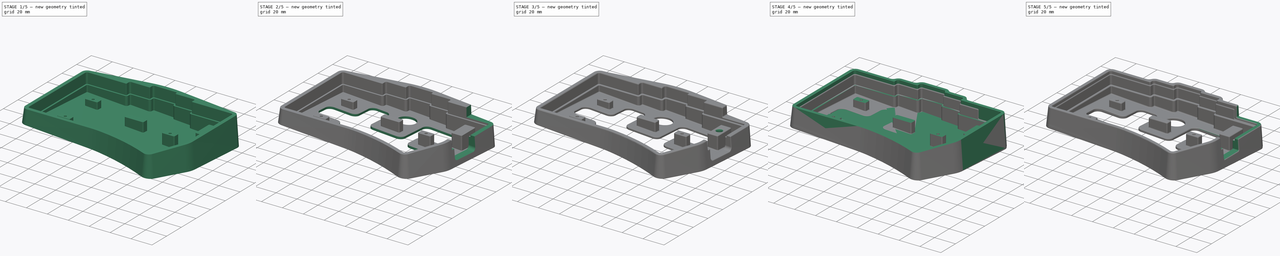
[diagram: build sequence overview — one tinted view per stage of 5, left to right]
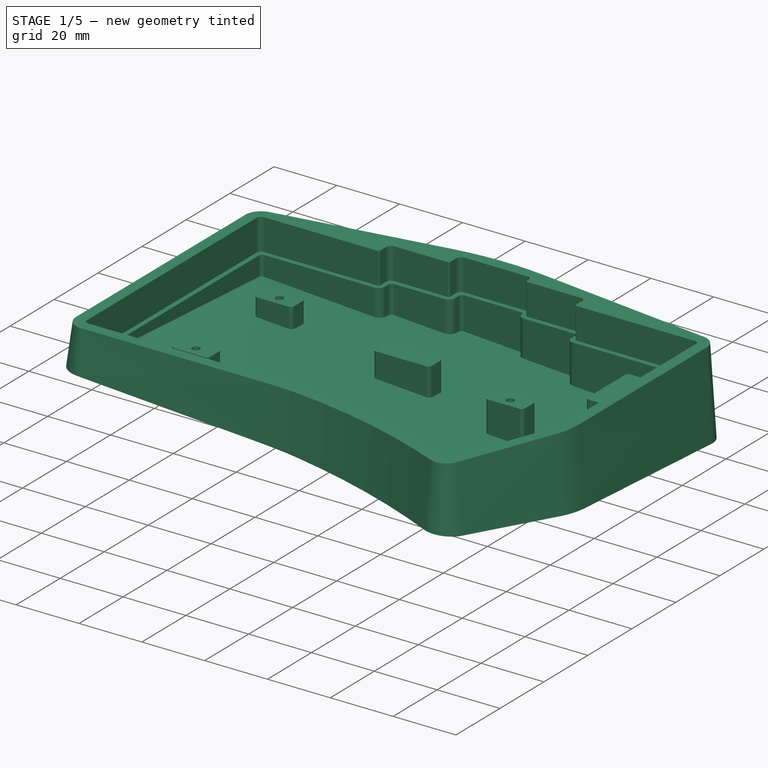
[diagram: stage 1 of 5 — iso view after this stage's code; geometry added in this stage tinted green]
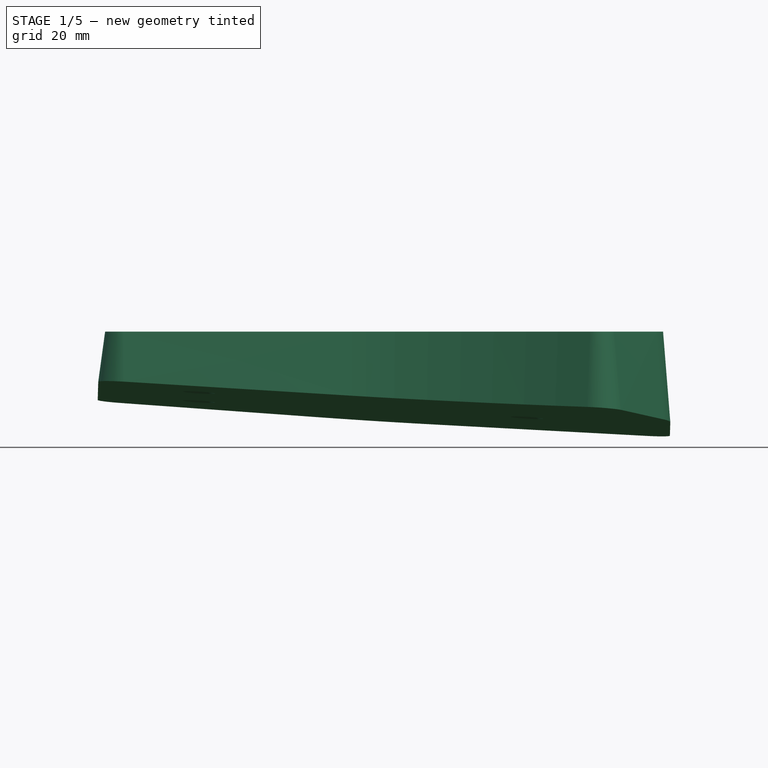
[diagram: stage 1 of 5 — front view after this stage's code; geometry added in this stage tinted green]
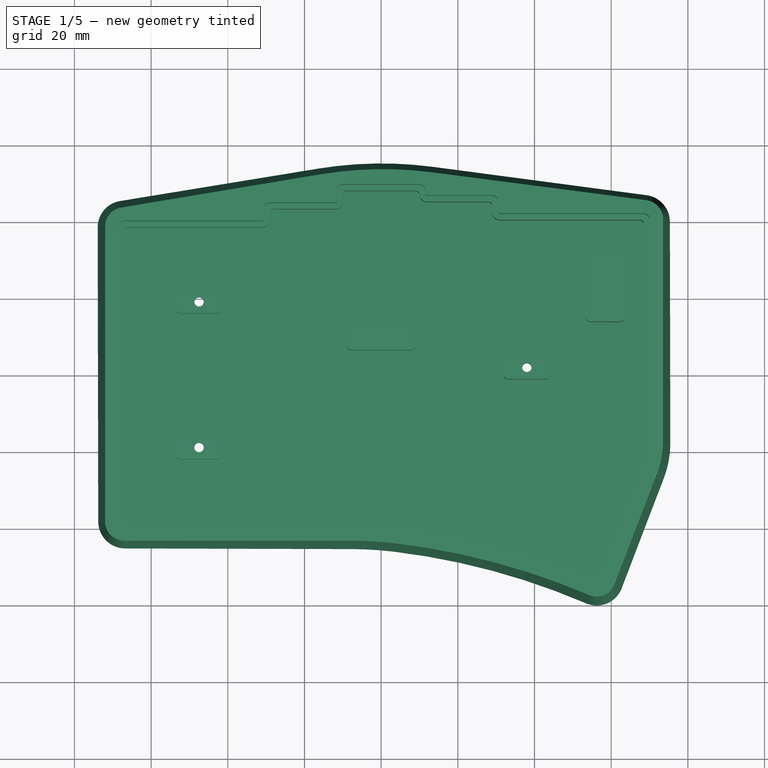
[diagram: stage 1 of 5 — top view after this stage's code; geometry added in this stage tinted green]
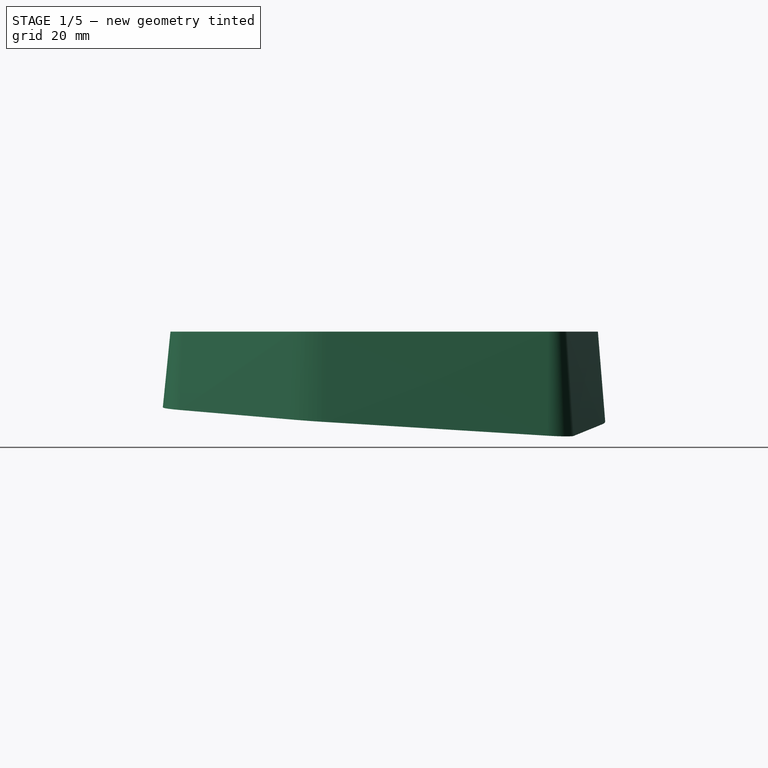
[diagram: stage 1 of 5 — right view after this stage's code; geometry added in this stage tinted green]
FCSTD DOCUMENT  (FreeCAD 0.20R)
Label: case
License: All rights reserved
LicenseURL: http://en.wikipedia.org/wiki/All_rights_reserved
objects: Sketcher::SketchObject×17, PartDesign::Pocket×11, PartDesign::Fillet×6, PartDesign::AdditiveLoft×2, PartDesign::Hole×2, PartDesign::Chamfer×2, PartDesign::Body×2
note: 65 computed .brp shape members not serialized (recipe doc carries the construction recipe); baked Part::Feature solids carry a one-line shape summary decoded from their .brp

FEATURE [PartDesign::Body] Body  label="v1"
  Group = -> [Sketch,Sketch001,Sketch002,Sketch003,Sketch004,AdditiveLoft,Pocket,Pocket001,Hole,Sketch005,Pocket002,Sketch006,Pocket003,Sketch007,Pocket004,Chamfer,Fillet]
  Origin = -> Origin
  Placement = pos=(0,0,0) rot=(0.707107,-0.707107,0;0.069813rad)
  Tip = -> Fillet
FEATURE [Sketcher::SketchObject] Sketch014
  AttachmentOffset = pos=(0,0,0) rot=(-0.707107,0.707107,0;0.087266rad)
  FullyConstrained = false
  MapMode = 5
  Placement = pos=(0,0,0) rot=(-0.707107,0.707107,0;0.087266rad)
  Support = -> [XY_Plane001]
  sketch-geometry (14):
    g0: ArcOfCircle CenterX=49.5253 CenterY=-17.4258 CenterZ=0 NormalX=0 NormalY=0 NormalZ=1 AngleXU=0 Radius=26 StartAngle=5.91667 EndAngle=6.28319
    g1: LineSegment StartX=73.7984 StartY=-26.7433 StartZ=0 EndX=62.7279 EndY=-55.5829 EndZ=0
    g2: ArcOfCircle CenterX=56.1928 CenterY=-53.0743 CenterZ=0 NormalX=0 NormalY=0 NormalZ=1 AngleXU=0 Radius=7 StartAngle=4.3088 EndAngle=5.91667
    g3: ArcOfCircle CenterX=-18.0326 CenterY=-226.893 CenterZ=0 NormalX=0 NormalY=0 NormalZ=1 AngleXU=0 Radius=182.004 StartAngle=1.16721 EndAngle=1.45294
    g4: LineSegment StartX=-7.68454 StartY=-45.5 StartZ=0 EndX=-67 EndY=-45.5 EndZ=0
    g5: ArcOfCircle CenterX=-7.68454 CenterY=-139.5 CenterZ=0 NormalX=0 NormalY=0 NormalZ=1 AngleXU=0 Radius=94 StartAngle=1.45294 EndAngle=1.5708
    g6: ArcOfCircle CenterX=-67 CenterY=-38.5 CenterZ=0 NormalX=0 NormalY=0 NormalZ=1 AngleXU=0 Radius=7 StartAngle=3.14159 EndAngle=4.71239
    g7: ArcOfCircle CenterX=0.506089 CenterY=-46.5732 CenterZ=0 NormalX=0 NormalY=0 NormalZ=1 AngleXU=0 Radius=102 StartAngle=1.44166 EndAngle=1.73595
    g8: LineSegment StartX=69.4267 StartY=47.3333 StartZ=0 EndX=13.6414 EndY=54.5775 EndZ=0
    g9: LineSegment StartX=75.5253 StartY=-17.4258 StartZ=0 EndX=75.5253 EndY=40.3916 EndZ=0
    g10: ArcOfCircle CenterX=68.5253 CenterY=40.3916 CenterZ=0 NormalX=0 NormalY=0 NormalZ=1 AngleXU=0 Radius=7 StartAngle=0 EndAngle=1.44166
    g11: LineSegment StartX=-16.2626 StartY=54.039 StartZ=0 EndX=-68.1508 EndY=45.391 EndZ=0
    g12: LineSegment StartX=-74 StartY=38.4862 StartZ=0 EndX=-74 EndY=-38.5 EndZ=0
    g13: ArcOfCircle CenterX=-67 CenterY=38.4862 CenterZ=0 NormalX=0 NormalY=0 NormalZ=1 AngleXU=0 Radius=7 StartAngle=1.73595 EndAngle=3.14159
  constraints (14):
    c: Coincident(g6,g12)
    c: Coincident(g12,g13)
    c: Coincident(g11,g13)
    c: Coincident(g4,g6)
    c: Coincident(g7,g11)
    c: Coincident(g4,g5)
    c: Coincident(g3,g5)
    c: Coincident(g7,g8)
    c: Coincident(g2,g3)
    c: Coincident(g1,g2)
    c: Coincident(g8,g10)
    c: Coincident(g0,g1)
    c: Coincident(g0,g9)
    c: Coincident(g9,g10)
FEATURE [Sketcher::SketchObject] Sketch015
  AttachmentOffset = pos=(0,0,20) rot=(0.707107,-0.707107,0;0rad)
  FullyConstrained = false
  MapMode = 5
  Placement = pos=(0,0,20) rot=(0,0,1;0rad)
  Support = -> [XY_Plane001]
  sketch-geometry (14):
    g0: ArcOfCircle CenterX=0.506089 CenterY=-46.5732 CenterZ=0 NormalX=0 NormalY=0 NormalZ=1 AngleXU=0 Radius=100 StartAngle=1.44166 EndAngle=1.73595
    g1: ArcOfCircle CenterX=49.5253 CenterY=-17.4258 CenterZ=0 NormalX=0 NormalY=0 NormalZ=1 AngleXU=0 Radius=24 StartAngle=5.91667 EndAngle=6.28319
    g2: LineSegment StartX=71.9312 StartY=-26.0266 StartZ=0 EndX=60.8607 EndY=-54.8662 EndZ=0
    g3: ArcOfCircle CenterX=56.1928 CenterY=-53.0743 CenterZ=0 NormalX=0 NormalY=0 NormalZ=1 AngleXU=0 Radius=5 StartAngle=4.3088 EndAngle=5.91667
    g4: ArcOfCircle CenterX=-18.0326 CenterY=-226.893 CenterZ=0 NormalX=0 NormalY=0 NormalZ=1 AngleXU=0 Radius=184.004 StartAngle=1.16721 EndAngle=1.45294
    g5: ArcOfCircle CenterX=-7.68454 CenterY=-139.5 CenterZ=0 NormalX=0 NormalY=0 NormalZ=1 AngleXU=0 Radius=96 StartAngle=1.45294 EndAngle=1.5708
    g6: LineSegment StartX=-7.68454 StartY=-43.5 StartZ=0 EndX=-67 EndY=-43.5 EndZ=0
    g7: ArcOfCircle CenterX=-67 CenterY=-38.5 CenterZ=0 NormalX=0 NormalY=0 NormalZ=1 AngleXU=0 Radius=5 StartAngle=3.14159 EndAngle=4.71239
    g8: LineSegment StartX=73.5253 StartY=-17.4258 StartZ=0 EndX=73.5253 EndY=40.3916 EndZ=0
    g9: ArcOfCircle CenterX=68.5253 CenterY=40.3916 CenterZ=0 NormalX=0 NormalY=0 NormalZ=1 AngleXU=0 Radius=5 StartAngle=0 EndAngle=1.44166
    g10: LineSegment StartX=-72 StartY=38.4862 StartZ=0 EndX=-72 EndY=-38.5 EndZ=0
    g11: ArcOfCircle CenterX=-67 CenterY=38.4862 CenterZ=0 NormalX=0 NormalY=0 NormalZ=1 AngleXU=0 Radius=5 StartAngle=1.73595 EndAngle=3.14159
    g12: LineSegment StartX=-15.9338 StartY=52.0662 StartZ=0 EndX=-67.822 EndY=43.4182 EndZ=0
    g13: LineSegment StartX=69.1692 StartY=45.35 StartZ=0 EndX=13.3838 EndY=52.5942 EndZ=0
  constraints (14):
    c: Coincident(g7,g10)
    c: Coincident(g10,g11)
    c: Coincident(g11,g12)
    c: Coincident(g6,g7)
    c: Coincident(g0,g12)
    c: Coincident(g5,g6)
    c: Coincident(g4,g5)
    c: Coincident(g0,g13)
    c: Coincident(g3,g4)
    c: Coincident(g2,g3)
    c: Coincident(g9,g13)
    c: Coincident(g1,g2)
    c: Coincident(g1,g8)
    c: Coincident(g8,g9)
FEATURE [PartDesign::AdditiveLoft] AdditiveLoft001
  Closed = true
  Profile = -> Sketch014
  Ruled = true
  Sections = -> [Sketch015]
FEATURE [Sketcher::SketchObject] Sketch010
  FullyConstrained = false
  MapMode = 5
  Placement = pos=(0,0,20) rot=(0,0,1;0rad)
  Support = -> [AdditiveLoft001]
  sketch-geometry (28):
    g0: LineSegment StartX=12 StartY=46.65 StartZ=0 EndX=29 EndY=46.65 EndZ=0
    g1: ArcOfCircle CenterX=29 CenterY=45.15 CenterZ=0 NormalX=0 NormalY=0 NormalZ=1 AngleXU=0 Radius=1.5 StartAngle=0 EndAngle=1.5708
    g2: LineSegment StartX=30.5 StartY=45.15 StartZ=0 EndX=30.5 EndY=42.4 EndZ=0
    g3: ArcOfCircle CenterX=31 CenterY=42.4 CenterZ=0 NormalX=0 NormalY=0 NormalZ=1 AngleXU=0 Radius=0.5 StartAngle=3.14159 EndAngle=4.71239
    g4: LineSegment StartX=31 StartY=41.9 StartZ=0 EndX=68.5253 EndY=41.9 EndZ=0
    g5: ArcOfCircle CenterX=68.5253 CenterY=40.4 CenterZ=0 NormalX=0 NormalY=0 NormalZ=1 AngleXU=0 Radius=1.5 StartAngle=0 EndAngle=1.5708
    g6: LineSegment StartX=70.0253 StartY=-17.4258 StartZ=0 EndX=70.0253 EndY=40.4 EndZ=0
    g7: ArcOfCircle CenterX=49.5253 CenterY=-17.4258 CenterZ=0 NormalX=0 NormalY=0 NormalZ=1 AngleXU=0 Radius=20.5 StartAngle=5.91667 EndAngle=6.28319
    g8: LineSegment StartX=68.6637 StartY=-24.7723 StartZ=0 EndX=57.5932 EndY=-53.6119 EndZ=0
    g9: ArcOfCircle CenterX=56.1928 CenterY=-53.0743 CenterZ=0 NormalX=0 NormalY=0 NormalZ=1 AngleXU=0 Radius=1.5 StartAngle=4.3088 EndAngle=5.91667
    g10: ArcOfCircle CenterX=-18.0326 CenterY=-226.893 CenterZ=0 NormalX=0 NormalY=0 NormalZ=1 AngleXU=0 Radius=187.504 StartAngle=1.16721 EndAngle=1.45294
    g11: ArcOfCircle CenterX=-7.68454 CenterY=-139.5 CenterZ=0 NormalX=0 NormalY=0 NormalZ=1 AngleXU=0 Radius=99.5 StartAngle=1.45294 EndAngle=1.5708
    g12: LineSegment StartX=-7.68454 StartY=-40 StartZ=0 EndX=-67 EndY=-40 EndZ=0
    g13: ArcOfCircle CenterX=-67 CenterY=-38.5 CenterZ=0 NormalX=0 NormalY=0 NormalZ=1 AngleXU=0 Radius=1.5 StartAngle=3.14159 EndAngle=4.71239
    g14: LineSegment StartX=-68.5 StartY=38.5 StartZ=0 EndX=-68.5 EndY=-38.5 EndZ=0
    g15: ArcOfCircle CenterX=-67 CenterY=38.5 CenterZ=0 NormalX=0 NormalY=0 NormalZ=1 AngleXU=0 Radius=1.5 StartAngle=1.5708 EndAngle=3.14159
    g16: LineSegment StartX=-67 StartY=40 StartZ=0 EndX=-31 EndY=40 EndZ=0
    g17: LineSegment StartX=-30.5 StartY=40.5 StartZ=0 EndX=-30.5 EndY=43.25 EndZ=0
    g18: ArcOfCircle CenterX=-31 CenterY=40.5 CenterZ=0 NormalX=0 NormalY=0 NormalZ=1 AngleXU=0 Radius=0.5 StartAngle=4.71239 EndAngle=6.28319
    g19: ArcOfCircle CenterX=-29 CenterY=43.25 CenterZ=0 NormalX=0 NormalY=0 NormalZ=1 AngleXU=0 Radius=1.5 StartAngle=1.5708 EndAngle=3.14159
    g20: LineSegment StartX=-29 StartY=44.75 StartZ=0 EndX=-12 EndY=44.75 EndZ=0
    g21: LineSegment StartX=-11.5 StartY=45.25 StartZ=0 EndX=-11.5 EndY=48 EndZ=0
    g22: ArcOfCircle CenterX=-12 CenterY=45.25 CenterZ=0 NormalX=0 NormalY=0 NormalZ=1 AngleXU=0 Radius=0.5 StartAngle=4.71239 EndAngle=6.28319
    g23: ArcOfCircle CenterX=-10 CenterY=48 CenterZ=0 NormalX=0 NormalY=0 NormalZ=1 AngleXU=0 Radius=1.5 StartAngle=1.5708 EndAngle=3.14159
    g24: LineSegment StartX=-10 StartY=49.5 StartZ=0 EndX=10 EndY=49.5 EndZ=0
    g25: ArcOfCircle CenterX=10 CenterY=48 CenterZ=0 NormalX=0 NormalY=0 NormalZ=1 AngleXU=0 Radius=1.5 StartAngle=0 EndAngle=1.5708
    g26: LineSegment StartX=11.5 StartY=47.15 StartZ=0 EndX=11.5 EndY=48 EndZ=0
    g27: ArcOfCircle CenterX=12 CenterY=47.15 CenterZ=0 NormalX=0 NormalY=0 NormalZ=1 AngleXU=0 Radius=0.5 StartAngle=3.14159 EndAngle=4.71239
  constraints (28):
    c: Coincident(g13,g14)
    c: Coincident(g14,g15)
    c: Coincident(g12,g13)
    c: Coincident(g15,g16)
    c: Coincident(g16,g18)
    c: Coincident(g17,g18)
    c: Coincident(g17,g19)
    c: Coincident(g19,g20)
    c: Coincident(g20,g22)
    c: Coincident(g21,g22)
    c: Coincident(g21,g23)
    c: Coincident(g23,g24)
    c: Coincident(g11,g12)
    c: Coincident(g10,g11)
    c: Coincident(g24,g25)
    c: Coincident(g26,g27)
    c: Coincident(g25,g26)
    c: Coincident(g0,g27)
    c: Coincident(g0,g1)
    c: Coincident(g2,g3)
    c: Coincident(g1,g2)
    c: Coincident(g3,g4)
    c: Coincident(g9,g10)
    c: Coincident(g8,g9)
    c: Coincident(g4,g5)
    c: Coincident(g7,g8)
    c: Coincident(g6,g7)
    c: Coincident(g5,g6)
FEATURE [PartDesign::Pocket] Pocket005
  BaseFeature = -> AdditiveLoft001
  Direction = (0,0,-1)
  Length = 10
  Length2 = 5
  Profile = -> Sketch010
  ReferenceAxis = -> Sketch010 [N_Axis]
  Type = 0
FEATURE [Sketcher::SketchObject] Sketch011
  FullyConstrained = false
  MapMode = 5
  Placement = pos=(0,0,10) rot=(0,0,1;0rad)
  Support = -> [Pocket005]
  sketch-geometry (3):
    g0: Circle CenterX=-47.5 CenterY=19 CenterZ=0 NormalX=0 NormalY=0 NormalZ=-1 AngleXU=0 Radius=1
    g1: Circle CenterX=-47.5 CenterY=-19 CenterZ=0 NormalX=0 NormalY=0 NormalZ=-1 AngleXU=0 Radius=1
    g2: Circle CenterX=38 CenterY=1.9 CenterZ=0 NormalX=0 NormalY=0 NormalZ=-1 AngleXU=0 Radius=1
FEATURE [Sketcher::SketchObject] Sketch012
  FullyConstrained = false
  MapMode = 5
  Placement = pos=(0,0,10) rot=(0,0,1;0rad)
  Support = -> [Pocket005]
  sketch-geometry (67):
    g0: ArcOfCircle CenterX=-31 CenterY=40.5 CenterZ=0 NormalX=0 NormalY=0 NormalZ=1 AngleXU=0 Radius=2 StartAngle=4.71239 EndAngle=6.28319
    g1: ArcOfCircle CenterX=-12 CenterY=45.25 CenterZ=0 NormalX=0 NormalY=0 NormalZ=1 AngleXU=0 Radius=2 StartAngle=4.71239 EndAngle=6.28319
    g2: ArcOfCircle CenterX=31 CenterY=42.4 CenterZ=0 NormalX=0 NormalY=0 NormalZ=1 AngleXU=0 Radius=2 StartAngle=3.14159 EndAngle=4.71239
    g3: ArcOfCircle CenterX=49.5253 CenterY=-17.4258 CenterZ=0 NormalX=0 NormalY=0 NormalZ=1 AngleXU=0 Radius=19 StartAngle=5.91667 EndAngle=6.28319
    g4: ArcOfCircle CenterX=-7.68454 CenterY=-139.5 CenterZ=0 NormalX=0 NormalY=0 NormalZ=1 AngleXU=0 Radius=101 StartAngle=1.45294 EndAngle=1.5708
    g5: LineSegment StartX=-7.68454 StartY=-38.5 StartZ=0 EndX=-66 EndY=-38.5 EndZ=0
    g6: ArcOfCircle CenterX=-66 CenterY=-37.5 CenterZ=0 NormalX=0 NormalY=0 NormalZ=1 AngleXU=0 Radius=1 StartAngle=3.14159 EndAngle=4.71239
    g7: LineSegment StartX=-67 StartY=37.5 StartZ=0 EndX=-67 EndY=-37.5 EndZ=0
    g8: LineSegment StartX=-66 StartY=38.5 StartZ=0 EndX=-31 EndY=38.5 EndZ=0
    g9: ArcOfCircle CenterX=-66 CenterY=37.5 CenterZ=0 NormalX=0 NormalY=0 NormalZ=1 AngleXU=0 Radius=1 StartAngle=1.5708 EndAngle=3.14159
    g10: LineSegment StartX=-29 StartY=40.5 StartZ=0 EndX=-29 EndY=42.25 EndZ=0
    g11: LineSegment StartX=-28 StartY=43.25 StartZ=0 EndX=-12 EndY=43.25 EndZ=0
    g12: ArcOfCircle CenterX=-28 CenterY=42.25 CenterZ=0 NormalX=0 NormalY=0 NormalZ=1 AngleXU=0 Radius=1 StartAngle=1.5708 EndAngle=3.14159
    g13: LineSegment StartX=-10 StartY=45.25 StartZ=0 EndX=-10 EndY=47 EndZ=0
    g14: ArcOfCircle CenterX=-9 CenterY=47 CenterZ=0 NormalX=0 NormalY=0 NormalZ=1 AngleXU=0 Radius=1 StartAngle=1.5708 EndAngle=3.14159
    g15: LineSegment StartX=-9 StartY=48 StartZ=0 EndX=9.00375 EndY=48 EndZ=0
    g16: ArcOfCircle CenterX=12 CenterY=47.15 CenterZ=0 NormalX=0 NormalY=0 NormalZ=1 AngleXU=0 Radius=2 StartAngle=3.19161 EndAngle=4.71239
    g17: ArcOfCircle CenterX=9.00375 CenterY=47 CenterZ=0 NormalX=0 NormalY=0 NormalZ=1 AngleXU=0 Radius=1 StartAngle=0.0500209 EndAngle=1.5708
    g18: LineSegment StartX=12 StartY=45.15 StartZ=0 EndX=28 EndY=45.15 EndZ=0
    g19: LineSegment StartX=29 StartY=44.15 StartZ=0 EndX=29 EndY=42.4 EndZ=0
    g20: ArcOfCircle CenterX=28 CenterY=44.15 CenterZ=0 NormalX=0 NormalY=0 NormalZ=1 AngleXU=0 Radius=1 StartAngle=0 EndAngle=1.5708
    g21: LineSegment StartX=31 StartY=40.4 StartZ=0 EndX=67.5253 EndY=40.4 EndZ=0
    g22: LineSegment StartX=68.5253 StartY=-17.4258 StartZ=0 EndX=68.5253 EndY=39.4 EndZ=0
    g23: ArcOfCircle CenterX=67.5253 CenterY=39.4 CenterZ=0 NormalX=0 NormalY=0 NormalZ=1 AngleXU=0 Radius=1 StartAngle=0 EndAngle=1.5708
    g24: ArcOfCircle CenterX=-18.0326 CenterY=-226.893 CenterZ=0 NormalX=0 NormalY=0 NormalZ=1 AngleXU=0 Radius=189.004 StartAngle=1.17267 EndAngle=1.45294
    g25: LineSegment StartX=67.2633 StartY=-24.2348 StartZ=0 EndX=56.5637 EndY=-52.1081 EndZ=0
    g26: ArcOfCircle CenterX=55.6301 CenterY=-51.7498 CenterZ=0 NormalX=0 NormalY=0 NormalZ=1 AngleXU=0 Radius=1 StartAngle=4.31426 EndAngle=5.91667
    g27: ArcOfCircle CenterX=-42.5 CenterY=21 CenterZ=0 NormalX=0 NormalY=0 NormalZ=1 AngleXU=0 Radius=1 StartAngle=0 EndAngle=1.5708
    g28: LineSegment StartX=-41.5 StartY=17 StartZ=0 EndX=-41.5 EndY=21 EndZ=0
    g29: ArcOfCircle CenterX=-42.5 CenterY=17 CenterZ=0 NormalX=0 NormalY=0 NormalZ=1 AngleXU=0 Radius=1 StartAngle=4.71239 EndAngle=6.28319
    g30: LineSegment StartX=-42.5 StartY=16 StartZ=0 EndX=-52.5 EndY=16 EndZ=0
    g31: ArcOfCircle CenterX=-52.5 CenterY=17 CenterZ=0 NormalX=0 NormalY=0 NormalZ=1 AngleXU=0 Radius=1 StartAngle=3.14159 EndAngle=4.71239
    g32: LineSegment StartX=-53.5 StartY=17 StartZ=0 EndX=-53.5 EndY=21 EndZ=0
    g33: LineSegment StartX=-42.5 StartY=22 StartZ=0 EndX=-52.5 EndY=22 EndZ=0
    g34: ArcOfCircle CenterX=-52.5 CenterY=21 CenterZ=0 NormalX=0 NormalY=0 NormalZ=1 AngleXU=0 Radius=1 StartAngle=1.5708 EndAngle=3.14159
    g35: ArcOfCircle CenterX=-42.5 CenterY=-17 CenterZ=0 NormalX=0 NormalY=0 NormalZ=1 AngleXU=0 Radius=1 StartAngle=0 EndAngle=1.5708
    g36: LineSegment StartX=-41.5 StartY=-21 StartZ=0 EndX=-41.5 EndY=-17 EndZ=0
    g37: ArcOfCircle CenterX=-42.5 CenterY=-21 CenterZ=0 NormalX=0 NormalY=0 NormalZ=1 AngleXU=0 Radius=1 StartAngle=4.71239 EndAngle=6.28319
    g38: LineSegment StartX=-42.5 StartY=-22 StartZ=0 EndX=-52.5 EndY=-22 EndZ=0
    g39: ArcOfCircle CenterX=-52.5 CenterY=-21 CenterZ=0 NormalX=0 NormalY=0 NormalZ=1 AngleXU=0 Radius=1 StartAngle=3.14159 EndAngle=4.71239
    g40: LineSegment StartX=-53.5 StartY=-21 StartZ=0 EndX=-53.5 EndY=-17 EndZ=0
    g41: LineSegment StartX=-42.5 StartY=-16 StartZ=0 EndX=-52.5 EndY=-16 EndZ=0
    g42: ArcOfCircle CenterX=-52.5 CenterY=-17 CenterZ=0 NormalX=0 NormalY=0 NormalZ=1 AngleXU=0 Radius=1 StartAngle=1.5708 EndAngle=3.14159
    g43: ArcOfCircle CenterX=8 CenterY=11.5 CenterZ=0 NormalX=0 NormalY=0 NormalZ=1 AngleXU=0 Radius=1 StartAngle=0 EndAngle=1.5708
    g44: LineSegment StartX=9 StartY=7.5 StartZ=0 EndX=9 EndY=11.5 EndZ=0
    g45: ArcOfCircle CenterX=8 CenterY=7.5 CenterZ=0 NormalX=0 NormalY=0 NormalZ=1 AngleXU=0 Radius=1 StartAngle=4.71239 EndAngle=6.28319
    g46: LineSegment StartX=-8 StartY=6.5 StartZ=0 EndX=8 EndY=6.5 EndZ=0
    g47: ArcOfCircle CenterX=-8 CenterY=7.5 CenterZ=0 NormalX=0 NormalY=0 NormalZ=1 AngleXU=0 Radius=1 StartAngle=3.14159 EndAngle=4.71239
    g48: LineSegment StartX=-9 StartY=7.5 StartZ=0 EndX=-9 EndY=11.5 EndZ=0
    g49: LineSegment StartX=8 StartY=12.5 StartZ=0 EndX=-8 EndY=12.5 EndZ=0
    g50: ArcOfCircle CenterX=-8 CenterY=11.5 CenterZ=0 NormalX=0 NormalY=0 NormalZ=1 AngleXU=0 Radius=1 StartAngle=1.5708 EndAngle=3.14159
    g51: ArcOfCircle CenterX=54.5 CenterY=31.9 CenterZ=0 NormalX=0 NormalY=0 NormalZ=1 AngleXU=0 Radius=1 StartAngle=1.5708 EndAngle=3.14159
    g52: LineSegment StartX=54.5 StartY=32.9 StartZ=0 EndX=62.5 EndY=32.9 EndZ=0
    g53: ArcOfCircle CenterX=62.5 CenterY=31.9 CenterZ=0 NormalX=0 NormalY=0 NormalZ=1 AngleXU=0 Radius=1 StartAngle=0 EndAngle=1.5708
    g54: LineSegment StartX=63.5 StartY=31.9 StartZ=0 EndX=63.5 EndY=14.9 EndZ=0
    g55: ArcOfCircle CenterX=62.5 CenterY=14.9 CenterZ=0 NormalX=0 NormalY=0 NormalZ=1 AngleXU=0 Radius=1 StartAngle=4.71239 EndAngle=6.28319
    g56: LineSegment StartX=54.5 StartY=13.9 StartZ=0 EndX=62.5 EndY=13.9 EndZ=0
    g57: LineSegment StartX=53.5 StartY=31.9 StartZ=0 EndX=53.5 EndY=14.9 EndZ=0
    g58: ArcOfCircle CenterX=54.5 CenterY=14.9 CenterZ=0 NormalX=0 NormalY=0 NormalZ=1 AngleXU=0 Radius=1 StartAngle=3.14159 EndAngle=4.71239
    g59: ArcOfCircle CenterX=43 CenterY=3.9 CenterZ=0 NormalX=0 NormalY=0 NormalZ=1 AngleXU=0 Radius=1 StartAngle=0 EndAngle=1.5708
    g60: LineSegment StartX=44 StartY=-0.1 StartZ=0 EndX=44 EndY=3.9 EndZ=0
    g61: ArcOfCircle CenterX=43 CenterY=-0.1 CenterZ=0 NormalX=0 NormalY=0 NormalZ=1 AngleXU=0 Radius=1 StartAngle=4.71239 EndAngle=6.28319
    g62: LineSegment StartX=43 StartY=-1.1 StartZ=0 EndX=33 EndY=-1.1 EndZ=0
    g63: ArcOfCircle CenterX=33 CenterY=-0.1 CenterZ=0 NormalX=0 NormalY=0 NormalZ=1 AngleXU=0 Radius=1 StartAngle=3.14159 EndAngle=4.71239
    g64: LineSegment StartX=32 StartY=-0.1 StartZ=0 EndX=32 EndY=3.9 EndZ=0
    g65: LineSegment StartX=43 StartY=4.9 StartZ=0 EndX=33 EndY=4.9 EndZ=0
    g66: ArcOfCircle CenterX=33 CenterY=3.9 CenterZ=0 NormalX=0 NormalY=0 NormalZ=1 AngleXU=0 Radius=1 StartAngle=1.5708 EndAngle=3.14159
  constraints (67):
    c: Coincident(g6,g7)
    c: Coincident(g7,g9)
    c: Coincident(g5,g6)
    c: Coincident(g8,g9)
    c: Coincident(g39,g40)
    c: Coincident(g40,g42)
    c: Coincident(g31,g32)
    c: Coincident(g32,g34)
    c: Coincident(g38,g39)
    c: Coincident(g41,g42)
    c: Coincident(g30,g31)
    c: Coincident(g33,g34)
    c: Coincident(g37,g38)
    c: Coincident(g35,g41)
    c: Coincident(g29,g30)
    c: Coincident(g27,g33)
    c: Coincident(g36,g37)
    c: Coincident(g35,g36)
    c: Coincident(g28,g29)
    c: Coincident(g27,g28)
    c: Coincident(g0,g8)
    c: Coincident(g0,g10)
    c: Coincident(g10,g12)
    c: Coincident(g11,g12)
    c: Coincident(g1,g11)
    c: Coincident(g1,g13)
    c: Coincident(g13,g14)
    c: Coincident(g47,g48)
    c: Coincident(g48,g50)
    c: Coincident(g14,g15)
    c: Coincident(g46,g47)
    c: Coincident(g49,g50)
    c: Coincident(g4,g5)
    c: Coincident(g4,g24)
    c: Coincident(g45,g46)
    c: Coincident(g43,g49)
    c: Coincident(g44,g45)
    c: Coincident(g43,g44)
    c: Coincident(g15,g17)
    c: Coincident(g16,g17)
    c: Coincident(g16,g18)
    c: Coincident(g18,g20)
    c: Coincident(g2,g19)
    c: Coincident(g19,g20)
    c: Coincident(g2,g21)
    c: Coincident(g63,g64)
    c: Coincident(g64,g66)
    c: Coincident(g62,g63)
    c: Coincident(g65,g66)
    c: Coincident(g61,g62)
    c: Coincident(g59,g65)
    c: Coincident(g60,g61)
    c: Coincident(g59,g60)
    c: Coincident(g57,g58)
    c: Coincident(g51,g57)
    c: Coincident(g56,g58)
    c: Coincident(g51,g52)
    c: Coincident(g24,g26)
    c: Coincident(g25,g26)
    c: Coincident(g55,g56)
    c: Coincident(g52,g53)
    c: Coincident(g54,g55)
    c: Coincident(g53,g54)
    c: Coincident(g3,g25)
    c: Coincident(g21,g23)
    c: Coincident(g3,g22)
    c: Coincident(g22,g23)
FEATURE [PartDesign::Pocket] Pocket006
  BaseFeature = -> Pocket005
  Direction = (0,0,-1)
  Length = 0
  Length2 = 5
  Offset = -2
  Profile = -> Sketch012
  ReferenceAxis = -> Sketch012 [N_Axis]
  Type = 3
  UpToFace = -> Pocket005 [Face1]
FEATURE [PartDesign::Hole] Hole001
  BaseFeature = -> Pocket006
  CustomThreadClearance = 0
  Depth = 384.198
  DepthType = 1
  Diameter = 2.42
  DrillForDepth = false
  DrillPoint = 1
  DrillPointAngle = 118
  HoleCutCountersinkAngle = 90
  HoleCutCustomValues = false
  HoleCutDepth = 0
  HoleCutDiameter = 6.1
  HoleCutType = 0
  ModelThread = false
  Profile = -> Sketch011
  Tapered = false
  TaperedAngle = 90
  ThreadClass = 0
  ThreadDepth = 384.198
  ThreadDepthType = 0
  ThreadDirection = 0
  ThreadFit = 0
  ThreadSize = 7
  ThreadType = 1
  Threaded = false
  UseCustomThreadClearance = false
FEATURE [PartDesign::Chamfer] Chamfer001
  Angle = 45
  Base = -> Hole001 [Edge17,Edge15,Edge16]
  BaseFeature = -> Hole001
  ChamferType = 0
  FlipDirection = false
  Size = 3
  Size2 = 1
  SupportTransform = false
  UseAllEdges = false
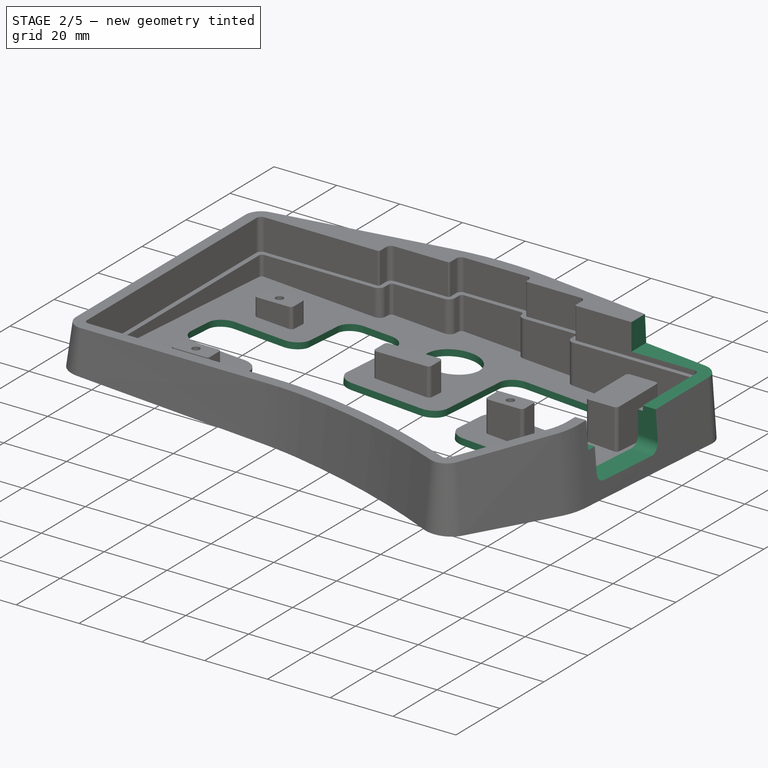
[diagram: stage 2 of 5 — iso view after this stage's code; geometry added in this stage tinted green]
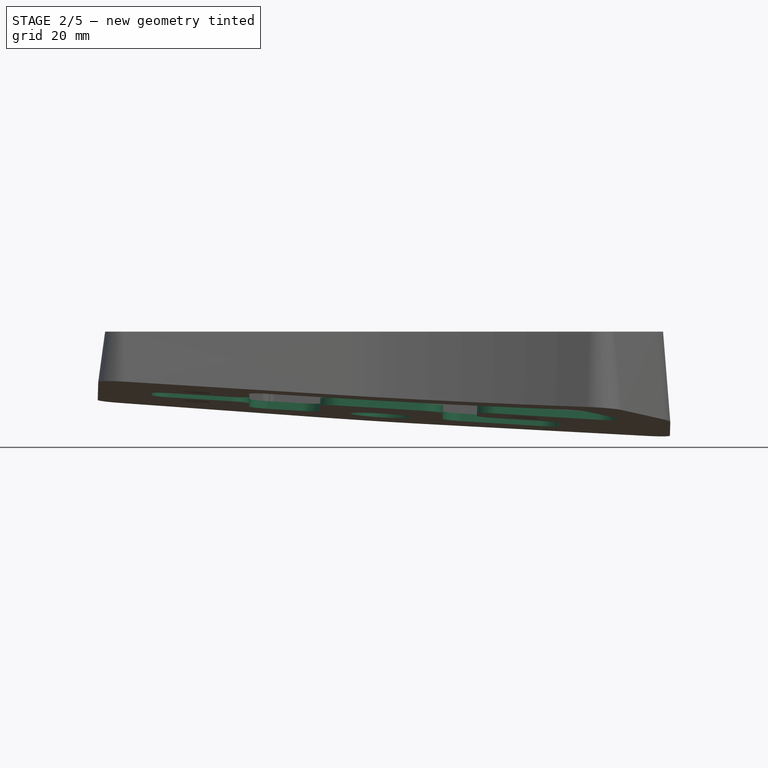
[diagram: stage 2 of 5 — front view after this stage's code; geometry added in this stage tinted green]
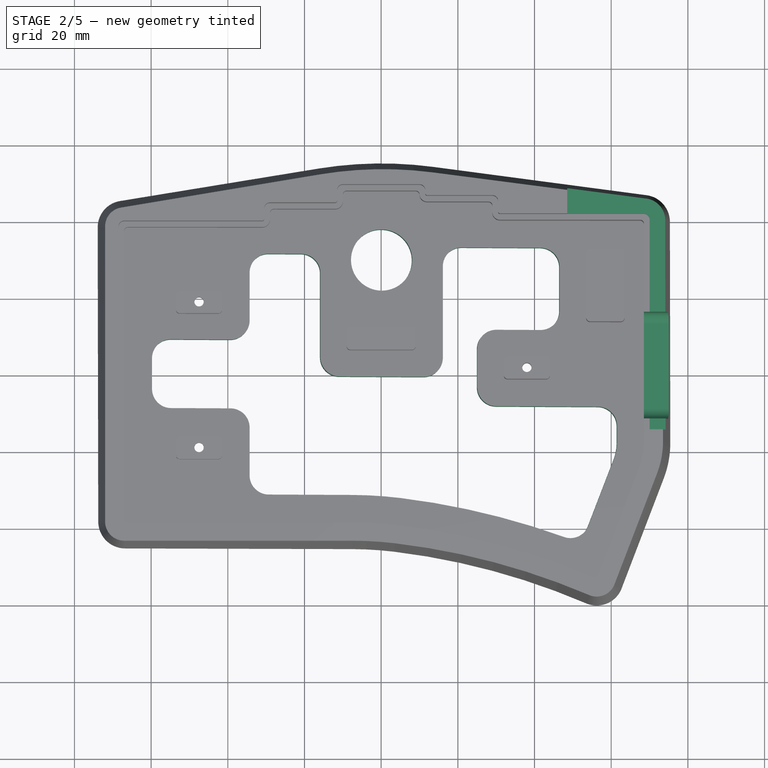
[diagram: stage 2 of 5 — top view after this stage's code; geometry added in this stage tinted green]
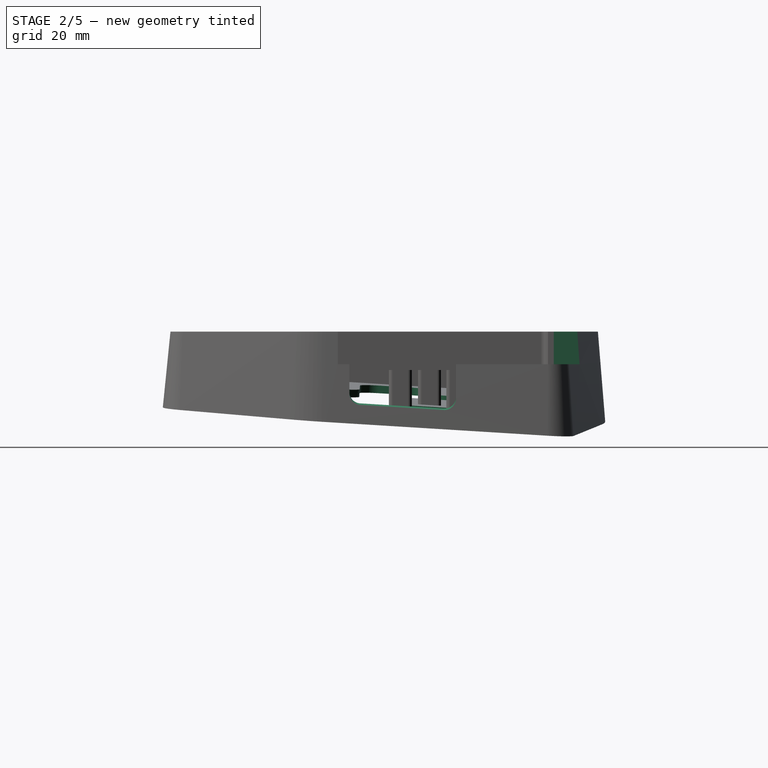
[diagram: stage 2 of 5 — right view after this stage's code; geometry added in this stage tinted green]
FEATURE [Sketcher::SketchObject] Sketch013
  FullyConstrained = false
  MapMode = 5
  Placement = pos=(0.122788,0.122788,1.98481) rot=(-0.707612,0.706264,-0.021825;0.087287rad)
  Support = -> [Chamfer001]
  sketch-geometry (37):
    g0: ArcOfCircle CenterX=-7.68454 CenterY=-139.5 CenterZ=0 NormalX=0 NormalY=0 NormalZ=1 AngleXU=0 Radius=108 StartAngle=1.45294 EndAngle=1.5708
    g1: ArcOfCircle CenterX=49.5253 CenterY=-17.4258 CenterZ=0 NormalX=0 NormalY=0 NormalZ=1 AngleXU=0 Radius=12 StartAngle=5.91667 EndAngle=6.28319
    g2: ArcOfCircle CenterX=-55 CenterY=4 CenterZ=0 NormalX=0 NormalY=0 NormalZ=1 AngleXU=0 Radius=5 StartAngle=1.5708 EndAngle=3.14159
    g3: LineSegment StartX=-60 StartY=4 StartZ=0 EndX=-60 EndY=-4 EndZ=0
    g4: ArcOfCircle CenterX=-55 CenterY=-4 CenterZ=0 NormalX=0 NormalY=0 NormalZ=1 AngleXU=0 Radius=5 StartAngle=3.14159 EndAngle=4.71239
    g5: LineSegment StartX=-39.5 StartY=-9 StartZ=0 EndX=-55 EndY=-9 EndZ=0
    g6: ArcOfCircle CenterX=-39.5 CenterY=-14 CenterZ=0 NormalX=0 NormalY=0 NormalZ=1 AngleXU=0 Radius=5 StartAngle=0 EndAngle=1.5708
    g7: LineSegment StartX=-34.5 StartY=-26.5 StartZ=0 EndX=-34.5 EndY=-14 EndZ=0
    g8: LineSegment StartX=-7.68454 StartY=-31.5 StartZ=0 EndX=-29.5 EndY=-31.5 EndZ=0
    g9: ArcOfCircle CenterX=-29.5 CenterY=-26.5 CenterZ=0 NormalX=0 NormalY=0 NormalZ=1 AngleXU=0 Radius=5 StartAngle=3.14159 EndAngle=4.71239
    g10: ArcOfCircle CenterX=-18.0326 CenterY=-226.893 CenterZ=0 NormalX=0 NormalY=0 NormalZ=1 AngleXU=0 Radius=196.004 StartAngle=1.22913 EndAngle=1.45294
    g11: LineSegment StartX=60.7282 StartY=-21.7262 StartZ=0 EndX=53.9825 EndY=-39.2996 EndZ=0
    g12: ArcOfCircle CenterX=49.3146 CenterY=-37.5077 CenterZ=0 NormalX=0 NormalY=0 NormalZ=1 AngleXU=0 Radius=5 StartAngle=4.37073 EndAngle=5.91667
    g13: LineSegment StartX=61.5253 StartY=-17.4258 StartZ=0 EndX=61.5253 EndY=-13.1 EndZ=0
    g14: ArcOfCircle CenterX=56.5253 CenterY=-13.1 CenterZ=0 NormalX=0 NormalY=0 NormalZ=1 AngleXU=0 Radius=5 StartAngle=0 EndAngle=1.5708
    g15: LineSegment StartX=56.5253 StartY=-8.1 StartZ=0 EndX=30 EndY=-8.1 EndZ=0
    g16: ArcOfCircle CenterX=30 CenterY=-3.1 CenterZ=0 NormalX=0 NormalY=0 NormalZ=1 AngleXU=0 Radius=5 StartAngle=3.14159 EndAngle=4.71239
    g17: ArcOfCircle CenterX=11 CenterY=4.5 CenterZ=0 NormalX=0 NormalY=0 NormalZ=1 AngleXU=0 Radius=5 StartAngle=4.71239 EndAngle=6.28319
    g18: LineSegment StartX=-11 StartY=-0.5 StartZ=0 EndX=11 EndY=-0.5 EndZ=0
    g19: ArcOfCircle CenterX=-11 CenterY=4.5 CenterZ=0 NormalX=0 NormalY=0 NormalZ=1 AngleXU=0 Radius=5 StartAngle=3.14159 EndAngle=4.71239
    g20: LineSegment StartX=25 StartY=6.9 StartZ=0 EndX=25 EndY=-3.1 EndZ=0
    g21: ArcOfCircle CenterX=30 CenterY=6.9 CenterZ=0 NormalX=0 NormalY=0 NormalZ=1 AngleXU=0 Radius=5 StartAngle=1.5708 EndAngle=3.14159
    g22: LineSegment StartX=41.5 StartY=11.9 StartZ=0 EndX=30 EndY=11.9 EndZ=0
    g23: ArcOfCircle CenterX=41.5 CenterY=16.9 CenterZ=0 NormalX=0 NormalY=0 NormalZ=1 AngleXU=0 Radius=5 StartAngle=4.71239 EndAngle=6.28319
    g24: LineSegment StartX=46.5 StartY=28.4 StartZ=0 EndX=46.5 EndY=16.9 EndZ=0
    g25: ArcOfCircle CenterX=41.5 CenterY=28.4 CenterZ=0 NormalX=0 NormalY=0 NormalZ=1 AngleXU=0 Radius=5 StartAngle=0 EndAngle=1.5708
    g26: LineSegment StartX=21 StartY=33.4 StartZ=0 EndX=41.5 EndY=33.4 EndZ=0
    g27: ArcOfCircle CenterX=21 CenterY=28.4 CenterZ=0 NormalX=0 NormalY=0 NormalZ=1 AngleXU=0 Radius=5 StartAngle=1.5708 EndAngle=3.14159
    g28: LineSegment StartX=-16 StartY=4.5 StartZ=0 EndX=-16 EndY=26.5 EndZ=0
    g29: ArcOfCircle CenterX=-21 CenterY=26.5 CenterZ=0 NormalX=0 NormalY=0 NormalZ=1 AngleXU=0 Radius=5 StartAngle=0 EndAngle=1.5708
    g30: LineSegment StartX=-29.5 StartY=31.5 StartZ=0 EndX=-21 EndY=31.5 EndZ=0
    g31: ArcOfCircle CenterX=-29.5 CenterY=26.5 CenterZ=0 NormalX=0 NormalY=0 NormalZ=1 AngleXU=0 Radius=5 StartAngle=1.5708 EndAngle=3.14159
    g32: LineSegment StartX=-39.5 StartY=9 StartZ=0 EndX=-55 EndY=9 EndZ=0
    g33: LineSegment StartX=-34.5 StartY=14 StartZ=0 EndX=-34.5 EndY=26.5 EndZ=0
    g34: ArcOfCircle CenterX=-39.5 CenterY=14 CenterZ=0 NormalX=0 NormalY=0 NormalZ=1 AngleXU=0 Radius=5 StartAngle=4.71239 EndAngle=6.28319
    g35: LineSegment StartX=16 StartY=4.5 StartZ=0 EndX=16 EndY=28.4 EndZ=0
    g36: Circle CenterX=0 CenterY=30 CenterZ=0 NormalX=0 NormalY=0 NormalZ=-1 AngleXU=0 Radius=8
  constraints (36):
    c: Coincident(g3,g4)
    c: Coincident(g2,g3)
    c: Coincident(g4,g5)
    c: Coincident(g2,g32)
    c: Coincident(g5,g6)
    c: Coincident(g32,g34)
    c: Coincident(g7,g9)
    c: Coincident(g6,g7)
    c: Coincident(g33,g34)
    c: Coincident(g31,g33)
    c: Coincident(g8,g9)
    c: Coincident(g30,g31)
    c: Coincident(g29,g30)
    c: Coincident(g19,g28)
    c: Coincident(g28,g29)
    c: Coincident(g18,g19)
    c: Coincident(g0,g8)
    c: Coincident(g0,g10)
    c: Coincident(g17,g18)
    c: Coincident(g17,g35)
    c: Coincident(g27,g35)
    c: Coincident(g26,g27)
    c: Coincident(g16,g20)
    c: Coincident(g20,g21)
    c: Coincident(g15,g16)
    c: Coincident(g21,g22)
    c: Coincident(g22,g23)
    c: Coincident(g25,g26)
    c: Coincident(g23,g24)
    c: Coincident(g24,g25)
    c: Coincident(g10,g12)
    c: Coincident(g11,g12)
    c: Coincident(g14,g15)
    c: Coincident(g1,g11)
    c: Coincident(g1,g13)
    c: Coincident(g13,g14)
FEATURE [PartDesign::Pocket] Pocket007
  BaseFeature = -> Chamfer001
  Direction = (-0.0616284,-0.0616284,-0.996195)
  Length = 5
  Length2 = 5
  Profile = -> Sketch013
  ReferenceAxis = -> Sketch013 [N_Axis]
  Type = 1
FEATURE [Sketcher::SketchObject] Sketch016
  ExternalGeometry = -> [AdditiveLoft001]
  FullyConstrained = true
  MapMode = 5
  Placement = pos=(0,0,20) rot=(0,0,1;0rad)
  Support = -> [AdditiveLoft001]
  sketch-geometry (4):
    g0: LineSegment StartX=48.5253 StartY=70.3916 StartZ=0 EndX=98.5253 EndY=70.3916 EndZ=0
    g1: LineSegment StartX=98.5253 StartY=70.3916 StartZ=0 EndX=98.5253 EndY=-14.4258 EndZ=0
    g2: LineSegment StartX=98.5253 StartY=-14.4258 StartZ=0 EndX=48.5253 EndY=-14.4258 EndZ=0
    g3: LineSegment StartX=48.5253 StartY=-14.4258 StartZ=0 EndX=48.5253 EndY=70.3916 EndZ=0
  constraints (12):
    c: Coincident(g0,g1)
    c: Coincident(g1,g2)
    c: Coincident(g2,g3)
    c: Coincident(g3,g0)
    c: Horizontal(g0)
    c: Horizontal(g2)
    c: Vertical(g1)
    c: Vertical(g3)
    c: Distance(g-3,g3) = 25
    c: Distance(g-3,g1) = 25
    c: Distance(g-3,g2) = 3
    c: Distance(g-3,g0) = 30
FEATURE [PartDesign::Pocket] Pocket008
  BaseFeature = -> Pocket007
  Direction = (0,0,-1)
  Length = 0
  Length2 = 5
  Offset = -1.5
  Profile = -> Sketch016
  ReferenceAxis = -> Sketch016 [N_Axis]
  Type = 3
  UpToFace = -> Pocket007 [Face161]
FEATURE [Sketcher::SketchObject] Sketch017
  ExternalGeometry = -> [AdditiveLoft001]
  FullyConstrained = true
  MapMode = 5
  Placement = pos=(0,0,20) rot=(0,0,1;0rad)
  Support = -> [AdditiveLoft001]
  sketch-geometry (4):
    g0: LineSegment StartX=66.5253 StartY=16.3916 StartZ=0 EndX=88.5253 EndY=16.3916 EndZ=0
    g1: LineSegment StartX=88.5253 StartY=16.3916 StartZ=0 EndX=88.5253 EndY=-11.4258 EndZ=0
    g2: LineSegment StartX=88.5253 StartY=-11.4258 StartZ=0 EndX=66.5253 EndY=-11.4258 EndZ=0
    g3: LineSegment StartX=66.5253 StartY=-11.4258 StartZ=0 EndX=66.5253 EndY=16.3916 EndZ=0
  constraints (12):
    c: Coincident(g0,g1)
    c: Coincident(g1,g2)
    c: Coincident(g2,g3)
    c: Coincident(g3,g0)
    c: Horizontal(g0)
    c: Horizontal(g2)
    c: Vertical(g1)
    c: Vertical(g3)
    c: Distance(g-3,g2) = 6
    c: Distance(g-3,g0) = 24
    c: Distance(g0) = 22
    c: DistanceX(g-3,g1) = 15
FEATURE [PartDesign::Pocket] Pocket009
  BaseFeature = -> Pocket008
  Direction = (0,0,-1)
  Length = 0
  Length2 = 5
  Offset = -3
  Profile = -> Sketch017
  ReferenceAxis = -> Sketch017 [N_Axis]
  Type = 3
  UpToFace = -> Pocket008 [Face60]
FEATURE [PartDesign::Fillet] Fillet001
  Base = -> Pocket009 [Edge207,Edge209]
  BaseFeature = -> Pocket009
  Radius = 3
  SupportTransform = false
  UseAllEdges = false
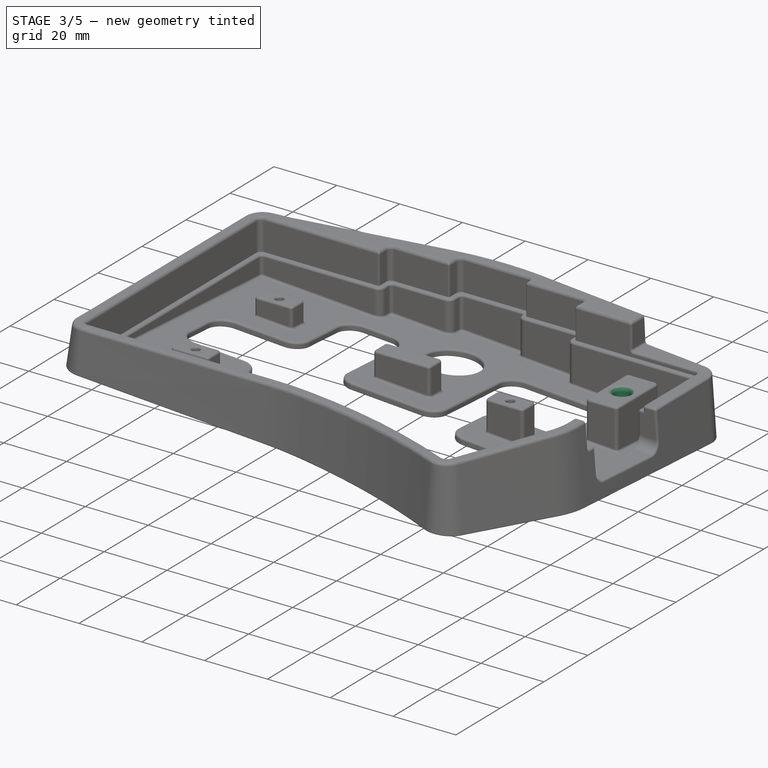
[diagram: stage 3 of 5 — iso view after this stage's code; geometry added in this stage tinted green]
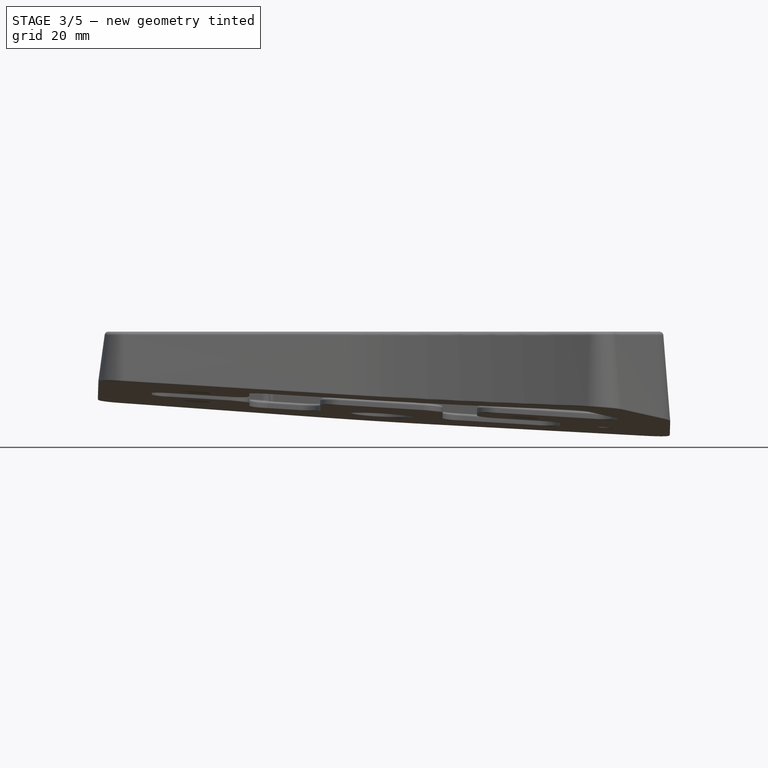
[diagram: stage 3 of 5 — front view after this stage's code; geometry added in this stage tinted green]
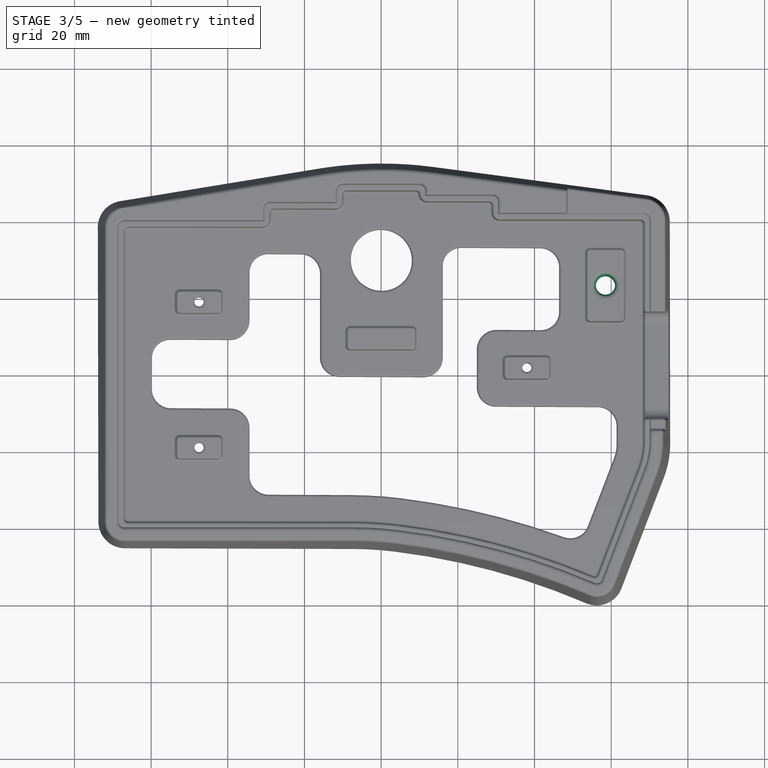
[diagram: stage 3 of 5 — top view after this stage's code; geometry added in this stage tinted green]
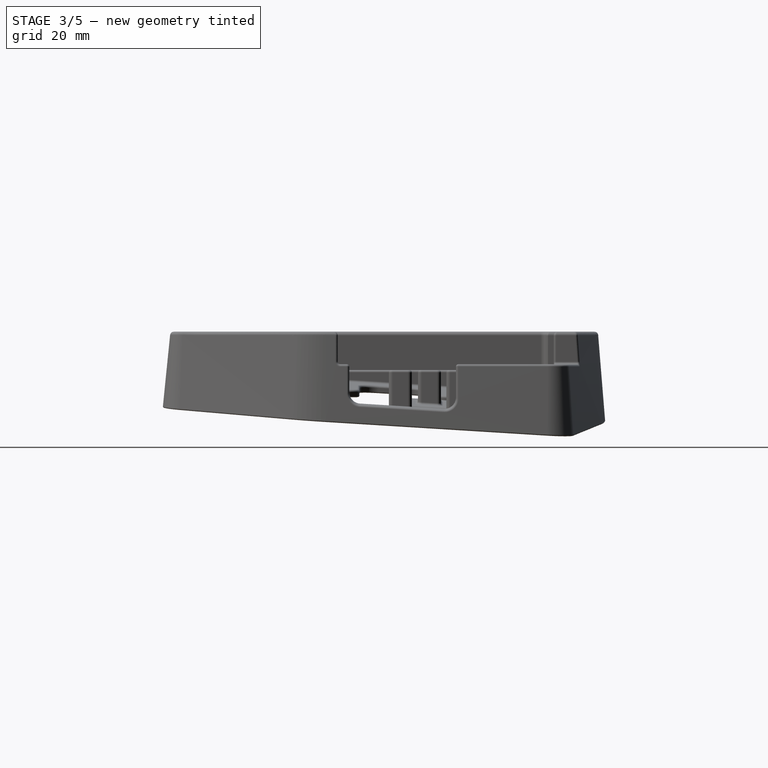
[diagram: stage 3 of 5 — right view after this stage's code; geometry added in this stage tinted green]
FEATURE [PartDesign::Fillet] Fillet002
  Base = -> Fillet001 [Face98,Edge164,Edge4,Face4,Face11,Edge22,Edge69,Edge70,Edge68,Edge8,Edge5,Edge25,Face2,Edge205,Edge204,Face171,Face169,Face170,Face167,Face168]
  BaseFeature = -> Fillet001
  Radius = 0.65
  SupportTransform = false
  UseAllEdges = false
FEATURE [PartDesign::Fillet] Fillet003
  Base = -> Fillet002 [Face2]
  BaseFeature = -> Fillet002
  Radius = 1
  SupportTransform = false
  UseAllEdges = false
FEATURE [Sketcher::SketchObject] Sketch018
  ExternalGeometry = -> [Fillet003]
  FullyConstrained = true
  MapMode = 5
  Placement = pos=(0,0,10) rot=(0,0,1;0rad)
  Support = -> [Fillet003]
  sketch-geometry (1):
    g0: Circle CenterX=58.5 CenterY=23.4 CenterZ=0 NormalX=0 NormalY=0 NormalZ=1 AngleXU=0 Radius=2.5
  constraints (2):
    c: Diameter(g0) = 5
    c: Symmetric(g-3,g-4,g0)
FEATURE [PartDesign::Pocket] Pocket010
  BaseFeature = -> Fillet003
  Direction = (0,0,-1)
  Length = 5
  Length2 = 5
  Profile = -> Sketch018
  ReferenceAxis = -> Sketch018 [N_Axis]
  Type = 1
FEATURE [PartDesign::Fillet] Fillet004
  Base = -> Pocket010 [Edge243]
  BaseFeature = -> Pocket010
  Radius = 1.5
  SupportTransform = false
  UseAllEdges = false
FEATURE [PartDesign::Fillet] Fillet005
  Base = -> Fillet004 [Face3]
  BaseFeature = -> Fillet004
  Radius = 0.3
  SupportTransform = false
  UseAllEdges = false
FEATURE [PartDesign::Body] Body001  label="v2"
  Group = -> [Sketch010,Sketch011,Sketch012,Sketch013,Sketch014,Sketch015,AdditiveLoft001,Pocket005,Pocket006,Hole001,Chamfer001,Pocket007,Sketch016,Pocket008,Sketch017,Pocket009,Fillet001,Fillet002,Fillet003,Sketch018,Pocket010,Fillet004,Fillet005]
  Origin = -> Origin001
  Placement = pos=(0,0,0) rot=(0.707107,-0.707107,0;0.087266rad)
  Tip = -> Fillet005
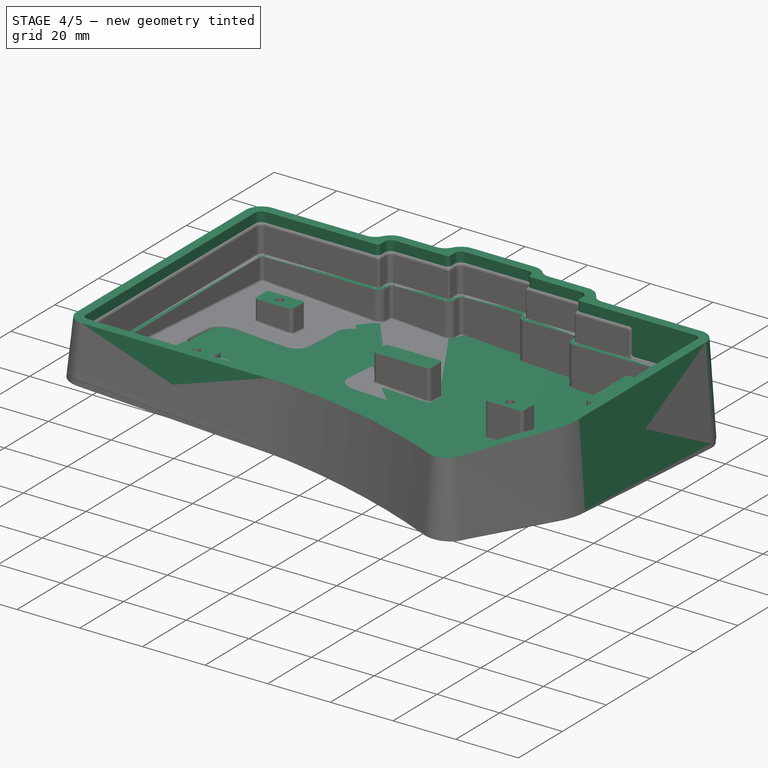
[diagram: stage 4 of 5 — iso view after this stage's code; geometry added in this stage tinted green]
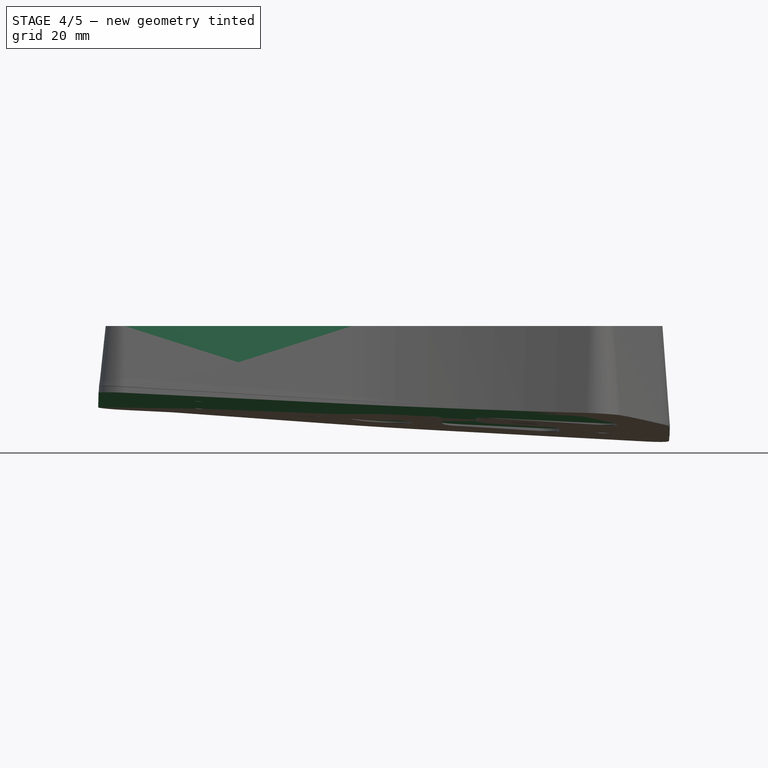
[diagram: stage 4 of 5 — front view after this stage's code; geometry added in this stage tinted green]
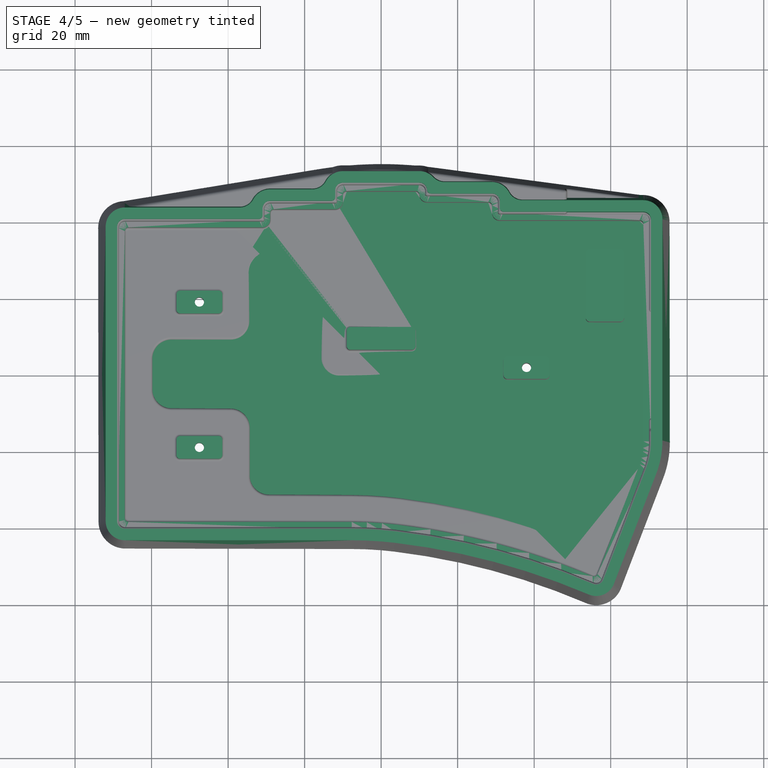
[diagram: stage 4 of 5 — top view after this stage's code; geometry added in this stage tinted green]
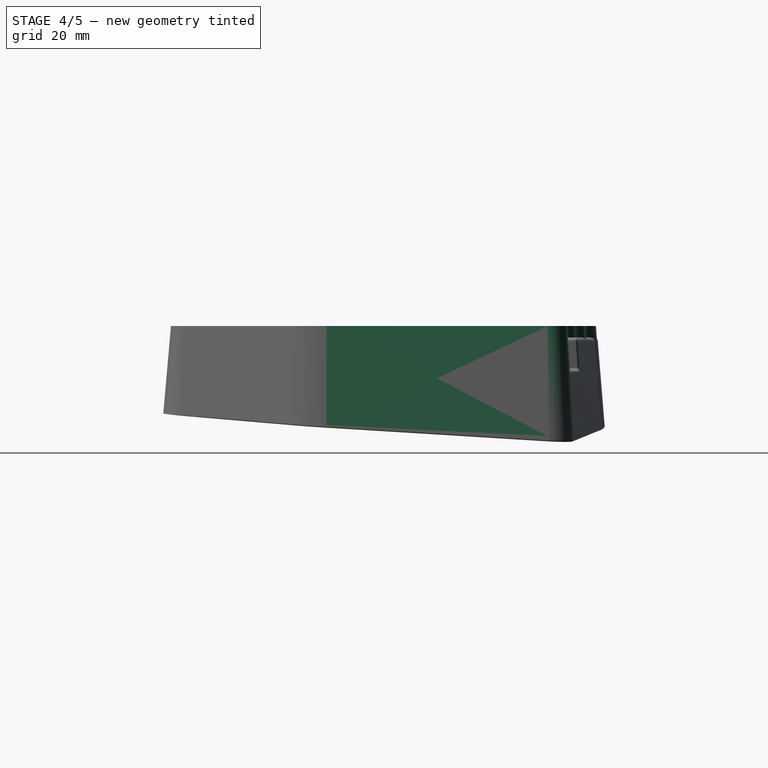
[diagram: stage 4 of 5 — right view after this stage's code; geometry added in this stage tinted green]
FEATURE [Sketcher::SketchObject] Sketch
  AttachmentOffset = pos=(0,0,0) rot=(-0.707107,0.707107,0;0.069813rad)
  FullyConstrained = false
  MapMode = 5
  Placement = pos=(0,0,0) rot=(-0.707107,0.707107,0;0.069813rad)
  Support = -> [XY_Plane]
  sketch-geometry (24):
    g0: LineSegment StartX=-10 StartY=55 StartZ=0 EndX=10 EndY=55 EndZ=0
    g1: ArcOfCircle CenterX=10 CenterY=48 CenterZ=0 NormalX=0 NormalY=0 NormalZ=1 AngleXU=0 Radius=7 StartAngle=0.752318 EndAngle=1.5708
    g2: LineSegment StartX=16.571 StartY=52.15 StartZ=0 EndX=29 EndY=52.15 EndZ=0
    g3: ArcOfCircle CenterX=29 CenterY=45.15 CenterZ=0 NormalX=0 NormalY=0 NormalZ=1 AngleXU=0 Radius=7 StartAngle=0.49181 EndAngle=1.5708
    g4: ArcOfCircle CenterX=16.571 CenterY=54.15 CenterZ=0 NormalX=0 NormalY=0 NormalZ=1 AngleXU=0 Radius=2 StartAngle=3.89391 EndAngle=4.71239
    g5: ArcOfCircle CenterX=36.9333 CenterY=49.4 CenterZ=0 NormalX=0 NormalY=0 NormalZ=1 AngleXU=0 Radius=2 StartAngle=3.6334 EndAngle=4.71239
    g6: LineSegment StartX=36.9333 StartY=47.4 StartZ=0 EndX=68.5253 EndY=47.4 EndZ=0
    g7: ArcOfCircle CenterX=68.5253 CenterY=40.4 CenterZ=0 NormalX=0 NormalY=0 NormalZ=1 AngleXU=0 Radius=7 StartAngle=0 EndAngle=1.5708
    g8: LineSegment StartX=75.5253 StartY=-17.4258 StartZ=0 EndX=75.5253 EndY=40.4 EndZ=0
    g9: ArcOfCircle CenterX=49.5253 CenterY=-17.4258 CenterZ=0 NormalX=0 NormalY=0 NormalZ=1 AngleXU=0 Radius=26 StartAngle=5.91667 EndAngle=6.28319
    g10: LineSegment StartX=73.7984 StartY=-26.7433 StartZ=0 EndX=62.7279 EndY=-55.5829 EndZ=0
    g11: ArcOfCircle CenterX=56.1928 CenterY=-53.0743 CenterZ=0 NormalX=0 NormalY=0 NormalZ=1 AngleXU=0 Radius=7 StartAngle=4.3088 EndAngle=5.91667
    g12: ArcOfCircle CenterX=-18.0326 CenterY=-226.893 CenterZ=0 NormalX=0 NormalY=0 NormalZ=1 AngleXU=0 Radius=182.004 StartAngle=1.16721 EndAngle=1.45294
    g13: LineSegment StartX=-7.68454 StartY=-45.5 StartZ=0 EndX=-67 EndY=-45.5 EndZ=0
    g14: ArcOfCircle CenterX=-7.68454 CenterY=-139.5 CenterZ=0 NormalX=0 NormalY=0 NormalZ=1 AngleXU=0 Radius=94 StartAngle=1.45294 EndAngle=1.5708
    g15: ArcOfCircle CenterX=-67 CenterY=-38.5 CenterZ=0 NormalX=0 NormalY=0 NormalZ=1 AngleXU=0 Radius=7 StartAngle=3.14159 EndAngle=4.71239
    g16: LineSegment StartX=-74 StartY=38.5 StartZ=0 EndX=-74 EndY=-38.5 EndZ=0
    g17: ArcOfCircle CenterX=-67 CenterY=38.5 CenterZ=0 NormalX=0 NormalY=0 NormalZ=1 AngleXU=0 Radius=7 StartAngle=1.5708 EndAngle=3.14159
    g18: LineSegment StartX=-67 StartY=45.5 StartZ=0 EndX=-36.9333 EndY=45.5 EndZ=0
    g19: ArcOfCircle CenterX=-36.9333 CenterY=47.5 CenterZ=0 NormalX=0 NormalY=0 NormalZ=1 AngleXU=0 Radius=2 StartAngle=4.71239 EndAngle=5.79138
    g20: ArcOfCircle CenterX=-29 CenterY=43.25 CenterZ=0 NormalX=0 NormalY=0 NormalZ=1 AngleXU=0 Radius=7 StartAngle=1.5708 EndAngle=2.64978
    g21: LineSegment StartX=-29 StartY=50.25 StartZ=0 EndX=-17.9333 EndY=50.25 EndZ=0
    g22: ArcOfCircle CenterX=-17.9333 CenterY=52.25 CenterZ=0 NormalX=0 NormalY=0 NormalZ=1 AngleXU=0 Radius=2 StartAngle=4.71239 EndAngle=5.79138
    g23: ArcOfCircle CenterX=-10 CenterY=48 CenterZ=0 NormalX=0 NormalY=0 NormalZ=1 AngleXU=0 Radius=7 StartAngle=1.5708 EndAngle=2.64978
  constraints (24):
    c: Coincident(g15,g16)
    c: Coincident(g16,g17)
    c: Coincident(g13,g15)
    c: Coincident(g17,g18)
    c: Coincident(g18,g19)
    c: Coincident(g19,g20)
    c: Coincident(g20,g21)
    c: Coincident(g21,g22)
    c: Coincident(g22,g23)
    c: Coincident(g0,g23)
    c: Coincident(g13,g14)
    c: Coincident(g12,g14)
    c: Coincident(g0,g1)
    c: Coincident(g1,g4)
    c: Coincident(g2,g4)
    c: Coincident(g2,g3)
    c: Coincident(g3,g5)
    c: Coincident(g5,g6)
    c: Coincident(g11,g12)
    c: Coincident(g10,g11)
    c: Coincident(g6,g7)
    c: Coincident(g9,g10)
    c: Coincident(g8,g9)
    c: Coincident(g7,g8)
FEATURE [Sketcher::SketchObject] Sketch001
  AttachmentOffset = pos=(0,0,23) rot=(1,0,0;0rad)
  FullyConstrained = false
  MapMode = 5
  Placement = pos=(0,0,23) rot=(0,0,1;0rad)
  Support = -> [XY_Plane]
  sketch-geometry (24):
    g0: ArcOfCircle CenterX=-67 CenterY=38.5 CenterZ=0 NormalX=0 NormalY=0 NormalZ=1 AngleXU=0 Radius=5 StartAngle=1.5708 EndAngle=3.14159
    g1: LineSegment StartX=-10 StartY=53 StartZ=0 EndX=10 EndY=53 EndZ=0
    g2: ArcOfCircle CenterX=68.5253 CenterY=40.4 CenterZ=0 NormalX=0 NormalY=0 NormalZ=1 AngleXU=0 Radius=5 StartAngle=0 EndAngle=1.5708
    g3: LineSegment StartX=73.5253 StartY=-17.4258 StartZ=0 EndX=73.5253 EndY=40.4 EndZ=0
    g4: ArcOfCircle CenterX=49.5253 CenterY=-17.4258 CenterZ=0 NormalX=0 NormalY=0 NormalZ=1 AngleXU=0 Radius=24 StartAngle=5.91667 EndAngle=6.28319
    g5: LineSegment StartX=71.9312 StartY=-26.0266 StartZ=0 EndX=60.8607 EndY=-54.8662 EndZ=0
    g6: ArcOfCircle CenterX=56.1928 CenterY=-53.0743 CenterZ=0 NormalX=0 NormalY=0 NormalZ=1 AngleXU=0 Radius=5 StartAngle=4.3088 EndAngle=5.91667
    g7: ArcOfCircle CenterX=-18.0326 CenterY=-226.893 CenterZ=0 NormalX=0 NormalY=0 NormalZ=1 AngleXU=0 Radius=184.004 StartAngle=1.16721 EndAngle=1.45294
    g8: ArcOfCircle CenterX=-7.68454 CenterY=-139.5 CenterZ=0 NormalX=0 NormalY=0 NormalZ=1 AngleXU=0 Radius=96 StartAngle=1.45294 EndAngle=1.5708
    g9: LineSegment StartX=-7.68454 StartY=-43.5 StartZ=0 EndX=-67 EndY=-43.5 EndZ=0
    g10: ArcOfCircle CenterX=-67 CenterY=-38.5 CenterZ=0 NormalX=0 NormalY=0 NormalZ=1 AngleXU=0 Radius=5 StartAngle=3.14159 EndAngle=4.71239
    g11: LineSegment StartX=-72 StartY=38.5 StartZ=0 EndX=-72 EndY=-38.5 EndZ=0
    g12: LineSegment StartX=-67 StartY=43.5 StartZ=0 EndX=-36.9333 EndY=43.5 EndZ=0
    g13: ArcOfCircle CenterX=-29 CenterY=43.25 CenterZ=0 NormalX=0 NormalY=0 NormalZ=1 AngleXU=0 Radius=5 StartAngle=1.5708 EndAngle=2.64978
    g14: ArcOfCircle CenterX=-36.9333 CenterY=47.5 CenterZ=0 NormalX=0 NormalY=0 NormalZ=1 AngleXU=0 Radius=4 StartAngle=4.71239 EndAngle=5.79138
    g15: LineSegment StartX=-29 StartY=48.25 StartZ=0 EndX=-17.9333 EndY=48.25 EndZ=0
    g16: ArcOfCircle CenterX=-10 CenterY=48 CenterZ=0 NormalX=0 NormalY=0 NormalZ=1 AngleXU=0 Radius=5 StartAngle=1.5708 EndAngle=2.64978
    g17: ArcOfCircle CenterX=-17.9333 CenterY=52.25 CenterZ=0 NormalX=0 NormalY=0 NormalZ=1 AngleXU=0 Radius=4 StartAngle=4.71239 EndAngle=5.79138
    g18: LineSegment StartX=16.571 StartY=50.15 StartZ=0 EndX=29 EndY=50.15 EndZ=0
    g19: ArcOfCircle CenterX=10 CenterY=48 CenterZ=0 NormalX=0 NormalY=0 NormalZ=1 AngleXU=0 Radius=5 StartAngle=0.752318 EndAngle=1.5708
    g20: ArcOfCircle CenterX=16.571 CenterY=54.15 CenterZ=0 NormalX=0 NormalY=0 NormalZ=1 AngleXU=0 Radius=4 StartAngle=3.89391 EndAngle=4.71239
    g21: LineSegment StartX=36.9333 StartY=45.4 StartZ=0 EndX=68.5253 EndY=45.4 EndZ=0
    g22: ArcOfCircle CenterX=29 CenterY=45.15 CenterZ=0 NormalX=0 NormalY=0 NormalZ=1 AngleXU=0 Radius=5 StartAngle=0.49181 EndAngle=1.5708
    g23: ArcOfCircle CenterX=36.9333 CenterY=49.4 CenterZ=0 NormalX=0 NormalY=0 NormalZ=1 AngleXU=0 Radius=4 StartAngle=3.6334 EndAngle=4.71239
  constraints (24):
    c: Coincident(g10,g11)
    c: Coincident(g0,g11)
    c: Coincident(g9,g10)
    c: Coincident(g0,g12)
    c: Coincident(g12,g14)
    c: Coincident(g13,g14)
    c: Coincident(g13,g15)
    c: Coincident(g15,g17)
    c: Coincident(g16,g17)
    c: Coincident(g1,g16)
    c: Coincident(g8,g9)
    c: Coincident(g7,g8)
    c: Coincident(g1,g19)
    c: Coincident(g19,g20)
    c: Coincident(g18,g20)
    c: Coincident(g18,g22)
    c: Coincident(g22,g23)
    c: Coincident(g21,g23)
    c: Coincident(g6,g7)
    c: Coincident(g5,g6)
    c: Coincident(g2,g21)
    c: Coincident(g4,g5)
    c: Coincident(g3,g4)
    c: Coincident(g2,g3)
FEATURE [PartDesign::AdditiveLoft] AdditiveLoft
  Closed = true
  Profile = -> Sketch
  Ruled = true
  Sections = -> [Sketch001]
FEATURE [Sketcher::SketchObject] Sketch002
  FullyConstrained = false
  MapMode = 5
  Placement = pos=(0,0,23) rot=(0,0,1;0rad)
  Support = -> [AdditiveLoft]
  sketch-geometry (27):
    g0: ArcOfCircle CenterX=-67 CenterY=38.5 CenterZ=0 NormalX=0 NormalY=0 NormalZ=1 AngleXU=0 Radius=2 StartAngle=1.5708 EndAngle=3.14159
    g1: ArcOfCircle CenterX=-29 CenterY=43.25 CenterZ=0 NormalX=0 NormalY=0 NormalZ=1 AngleXU=0 Radius=2 StartAngle=1.5708 EndAngle=3.14159
    g2: LineSegment StartX=-69 StartY=38.5 StartZ=0 EndX=-69 EndY=-38.5 EndZ=0
    g3: ArcOfCircle CenterX=-10 CenterY=48 CenterZ=0 NormalX=0 NormalY=0 NormalZ=1 AngleXU=0 Radius=2 StartAngle=1.5708 EndAngle=3.14159
    g4: LineSegment StartX=-10 StartY=50 StartZ=0 EndX=10 EndY=50 EndZ=0
    g5: ArcOfCircle CenterX=29 CenterY=45.15 CenterZ=0 NormalX=0 NormalY=0 NormalZ=1 AngleXU=0 Radius=2 StartAngle=0 EndAngle=1.5708
    g6: ArcOfCircle CenterX=68.5253 CenterY=40.4 CenterZ=0 NormalX=0 NormalY=0 NormalZ=1 AngleXU=0 Radius=2 StartAngle=0 EndAngle=1.5708
    g7: LineSegment StartX=70.5253 StartY=-17.4258 StartZ=0 EndX=70.5253 EndY=40.4 EndZ=0
    g8: ArcOfCircle CenterX=49.5253 CenterY=-17.4258 CenterZ=0 NormalX=0 NormalY=0 NormalZ=1 AngleXU=0 Radius=21 StartAngle=5.91667 EndAngle=6.28319
    g9: LineSegment StartX=69.1305 StartY=-24.9515 StartZ=0 EndX=58.06 EndY=-53.7911 EndZ=0
    g10: ArcOfCircle CenterX=56.1928 CenterY=-53.0743 CenterZ=0 NormalX=0 NormalY=0 NormalZ=1 AngleXU=0 Radius=2 StartAngle=4.3088 EndAngle=5.91667
    g11: ArcOfCircle CenterX=-18.0326 CenterY=-226.893 CenterZ=0 NormalX=0 NormalY=0 NormalZ=1 AngleXU=0 Radius=187.004 StartAngle=1.16721 EndAngle=1.45294
    g12: ArcOfCircle CenterX=-7.68454 CenterY=-139.5 CenterZ=0 NormalX=0 NormalY=0 NormalZ=1 AngleXU=0 Radius=99 StartAngle=1.45294 EndAngle=1.5708
    g13: LineSegment StartX=-7.68454 StartY=-40.5 StartZ=0 EndX=-67 EndY=-40.5 EndZ=0
    g14: ArcOfCircle CenterX=-67 CenterY=-38.5 CenterZ=0 NormalX=0 NormalY=0 NormalZ=1 AngleXU=0 Radius=2 StartAngle=3.14159 EndAngle=4.71239
    g15: LineSegment StartX=-67 StartY=40.5 StartZ=0 EndX=-32 EndY=40.5 EndZ=0
    g16: LineSegment StartX=-31 StartY=41.5 StartZ=0 EndX=-31 EndY=43.25 EndZ=0
    g17: ArcOfCircle CenterX=-32 CenterY=41.5 CenterZ=0 NormalX=0 NormalY=0 NormalZ=1 AngleXU=0 Radius=1 StartAngle=4.71239 EndAngle=6.28319
    g18: LineSegment StartX=-29 StartY=45.25 StartZ=0 EndX=-13 EndY=45.25 EndZ=0
    g19: LineSegment StartX=-12 StartY=46.25 StartZ=0 EndX=-12 EndY=48 EndZ=0
    g20: ArcOfCircle CenterX=-13 CenterY=46.25 CenterZ=0 NormalX=0 NormalY=0 NormalZ=1 AngleXU=0 Radius=1 StartAngle=4.71239 EndAngle=6.28319
    g21: LineSegment StartX=12.9962 StartY=47.15 StartZ=0 EndX=29 EndY=47.15 EndZ=0
    g22: ArcOfCircle CenterX=10 CenterY=48 CenterZ=0 NormalX=0 NormalY=0 NormalZ=1 AngleXU=0 Radius=2 StartAngle=0.0500209 EndAngle=1.5708
    g23: ArcOfCircle CenterX=12.9962 CenterY=48.15 CenterZ=0 NormalX=0 NormalY=0 NormalZ=1 AngleXU=0 Radius=1 StartAngle=3.19161 EndAngle=4.71239
    g24: LineSegment StartX=32 StartY=42.4 StartZ=0 EndX=68.5253 EndY=42.4 EndZ=0
    g25: LineSegment StartX=31 StartY=45.15 StartZ=0 EndX=31 EndY=43.4 EndZ=0
    g26: ArcOfCircle CenterX=32 CenterY=43.4 CenterZ=0 NormalX=0 NormalY=0 NormalZ=1 AngleXU=0 Radius=1 StartAngle=3.14159 EndAngle=4.71239
  constraints (27):
    c: Coincident(g2,g14)
    c: Coincident(g0,g2)
    c: Coincident(g13,g14)
    c: Coincident(g0,g15)
    c: Coincident(g15,g17)
    c: Coincident(g16,g17)
    c: Coincident(g1,g16)
    c: Coincident(g1,g18)
    c: Coincident(g18,g20)
    c: Coincident(g19,g20)
    c: Coincident(g3,g19)
    c: Coincident(g3,g4)
    c: Coincident(g12,g13)
    c: Coincident(g11,g12)
    c: Coincident(g4,g22)
    c: Coincident(g22,g23)
    c: Coincident(g21,g23)
    c: Coincident(g5,g21)
    c: Coincident(g25,g26)
    c: Coincident(g5,g25)
    c: Coincident(g24,g26)
    c: Coincident(g10,g11)
    c: Coincident(g9,g10)
    c: Coincident(g6,g24)
    c: Coincident(g8,g9)
    c: Coincident(g7,g8)
    c: Coincident(g6,g7)
FEATURE [PartDesign::Pocket] Pocket
  BaseFeature = -> AdditiveLoft
  Direction = (0,0,-1)
  Length = 12
  Length2 = 5
  Profile = -> Sketch002
  ReferenceAxis = -> Sketch002 [N_Axis]
  Type = 0
FEATURE [Sketcher::SketchObject] Sketch003
  FullyConstrained = false
  MapMode = 5
  Placement = pos=(0,0,11) rot=(0,0,1;0rad)
  Support = -> [Pocket]
  sketch-geometry (67):
    g0: ArcOfCircle CenterX=-31 CenterY=40.5 CenterZ=0 NormalX=0 NormalY=0 NormalZ=1 AngleXU=0 Radius=2 StartAngle=4.71239 EndAngle=6.28319
    g1: ArcOfCircle CenterX=-12 CenterY=45.25 CenterZ=0 NormalX=0 NormalY=0 NormalZ=1 AngleXU=0 Radius=2 StartAngle=4.71239 EndAngle=6.28319
    g2: ArcOfCircle CenterX=31 CenterY=42.4 CenterZ=0 NormalX=0 NormalY=0 NormalZ=1 AngleXU=0 Radius=2 StartAngle=3.14159 EndAngle=4.71239
    g3: ArcOfCircle CenterX=49.5253 CenterY=-17.4258 CenterZ=0 NormalX=0 NormalY=0 NormalZ=1 AngleXU=0 Radius=19 StartAngle=5.91667 EndAngle=6.28319
    g4: ArcOfCircle CenterX=-7.68454 CenterY=-139.5 CenterZ=0 NormalX=0 NormalY=0 NormalZ=1 AngleXU=0 Radius=101 StartAngle=1.45294 EndAngle=1.5708
    g5: LineSegment StartX=-7.68454 StartY=-38.5 StartZ=0 EndX=-66 EndY=-38.5 EndZ=0
    g6: ArcOfCircle CenterX=-66 CenterY=-37.5 CenterZ=0 NormalX=0 NormalY=0 NormalZ=1 AngleXU=0 Radius=1 StartAngle=3.14159 EndAngle=4.71239
    g7: LineSegment StartX=-67 StartY=37.5 StartZ=0 EndX=-67 EndY=-37.5 EndZ=0
    g8: LineSegment StartX=-66 StartY=38.5 StartZ=0 EndX=-31 EndY=38.5 EndZ=0
    g9: ArcOfCircle CenterX=-66 CenterY=37.5 CenterZ=0 NormalX=0 NormalY=0 NormalZ=1 AngleXU=0 Radius=1 StartAngle=1.5708 EndAngle=3.14159
    g10: LineSegment StartX=-29 StartY=40.5 StartZ=0 EndX=-29 EndY=42.25 EndZ=0
    g11: LineSegment StartX=-28 StartY=43.25 StartZ=0 EndX=-12 EndY=43.25 EndZ=0
    g12: ArcOfCircle CenterX=-28 CenterY=42.25 CenterZ=0 NormalX=0 NormalY=0 NormalZ=1 AngleXU=0 Radius=1 StartAngle=1.5708 EndAngle=3.14159
    g13: LineSegment StartX=-10 StartY=45.25 StartZ=0 EndX=-10 EndY=47 EndZ=0
    g14: ArcOfCircle CenterX=-9 CenterY=47 CenterZ=0 NormalX=0 NormalY=0 NormalZ=1 AngleXU=0 Radius=1 StartAngle=1.5708 EndAngle=3.14159
    g15: LineSegment StartX=-9 StartY=48 StartZ=0 EndX=9.00375 EndY=48 EndZ=0
    g16: ArcOfCircle CenterX=12 CenterY=47.15 CenterZ=0 NormalX=0 NormalY=0 NormalZ=1 AngleXU=0 Radius=2 StartAngle=3.19161 EndAngle=4.71239
    g17: ArcOfCircle CenterX=9.00375 CenterY=47 CenterZ=0 NormalX=0 NormalY=0 NormalZ=1 AngleXU=0 Radius=1 StartAngle=0.0500209 EndAngle=1.5708
    g18: LineSegment StartX=12 StartY=45.15 StartZ=0 EndX=28 EndY=45.15 EndZ=0
    g19: LineSegment StartX=29 StartY=44.15 StartZ=0 EndX=29 EndY=42.4 EndZ=0
    g20: ArcOfCircle CenterX=28 CenterY=44.15 CenterZ=0 NormalX=0 NormalY=0 NormalZ=1 AngleXU=0 Radius=1 StartAngle=0 EndAngle=1.5708
    g21: LineSegment StartX=31 StartY=40.4 StartZ=0 EndX=67.5253 EndY=40.4 EndZ=0
    g22: LineSegment StartX=68.5253 StartY=-17.4258 StartZ=0 EndX=68.5253 EndY=39.4 EndZ=0
    g23: ArcOfCircle CenterX=67.5253 CenterY=39.4 CenterZ=0 NormalX=0 NormalY=0 NormalZ=1 AngleXU=0 Radius=1 StartAngle=0 EndAngle=1.5708
    g24: ArcOfCircle CenterX=-18.0326 CenterY=-226.893 CenterZ=0 NormalX=0 NormalY=0 NormalZ=1 AngleXU=0 Radius=189.004 StartAngle=1.17267 EndAngle=1.45294
    g25: LineSegment StartX=67.2633 StartY=-24.2348 StartZ=0 EndX=56.5637 EndY=-52.1081 EndZ=0
    g26: ArcOfCircle CenterX=55.6301 CenterY=-51.7498 CenterZ=0 NormalX=0 NormalY=0 NormalZ=1 AngleXU=0 Radius=1 StartAngle=4.31426 EndAngle=5.91667
    g27: ArcOfCircle CenterX=-42.5 CenterY=21 CenterZ=0 NormalX=0 NormalY=0 NormalZ=1 AngleXU=0 Radius=1 StartAngle=0 EndAngle=1.5708
    g28: LineSegment StartX=-41.5 StartY=17 StartZ=0 EndX=-41.5 EndY=21 EndZ=0
    g29: ArcOfCircle CenterX=-42.5 CenterY=17 CenterZ=0 NormalX=0 NormalY=0 NormalZ=1 AngleXU=0 Radius=1 StartAngle=4.71239 EndAngle=6.28319
    g30: LineSegment StartX=-42.5 StartY=16 StartZ=0 EndX=-52.5 EndY=16 EndZ=0
    g31: ArcOfCircle CenterX=-52.5 CenterY=17 CenterZ=0 NormalX=0 NormalY=0 NormalZ=1 AngleXU=0 Radius=1 StartAngle=3.14159 EndAngle=4.71239
    g32: LineSegment StartX=-53.5 StartY=17 StartZ=0 EndX=-53.5 EndY=21 EndZ=0
    g33: LineSegment StartX=-42.5 StartY=22 StartZ=0 EndX=-52.5 EndY=22 EndZ=0
    g34: ArcOfCircle CenterX=-52.5 CenterY=21 CenterZ=0 NormalX=0 NormalY=0 NormalZ=1 AngleXU=0 Radius=1 StartAngle=1.5708 EndAngle=3.14159
    g35: ArcOfCircle CenterX=-42.5 CenterY=-17 CenterZ=0 NormalX=0 NormalY=0 NormalZ=1 AngleXU=0 Radius=1 StartAngle=0 EndAngle=1.5708
    g36: LineSegment StartX=-41.5 StartY=-21 StartZ=0 EndX=-41.5 EndY=-17 EndZ=0
    g37: ArcOfCircle CenterX=-42.5 CenterY=-21 CenterZ=0 NormalX=0 NormalY=0 NormalZ=1 AngleXU=0 Radius=1 StartAngle=4.71239 EndAngle=6.28319
    g38: LineSegment StartX=-42.5 StartY=-22 StartZ=0 EndX=-52.5 EndY=-22 EndZ=0
    g39: ArcOfCircle CenterX=-52.5 CenterY=-21 CenterZ=0 NormalX=0 NormalY=0 NormalZ=1 AngleXU=0 Radius=1 StartAngle=3.14159 EndAngle=4.71239
    g40: LineSegment StartX=-53.5 StartY=-21 StartZ=0 EndX=-53.5 EndY=-17 EndZ=0
    g41: LineSegment StartX=-42.5 StartY=-16 StartZ=0 EndX=-52.5 EndY=-16 EndZ=0
    g42: ArcOfCircle CenterX=-52.5 CenterY=-17 CenterZ=0 NormalX=0 NormalY=0 NormalZ=1 AngleXU=0 Radius=1 StartAngle=1.5708 EndAngle=3.14159
    g43: ArcOfCircle CenterX=8 CenterY=11.5 CenterZ=0 NormalX=0 NormalY=0 NormalZ=1 AngleXU=0 Radius=1 StartAngle=0 EndAngle=1.5708
    g44: LineSegment StartX=9 StartY=7.5 StartZ=0 EndX=9 EndY=11.5 EndZ=0
    g45: ArcOfCircle CenterX=8 CenterY=7.5 CenterZ=0 NormalX=0 NormalY=0 NormalZ=1 AngleXU=0 Radius=1 StartAngle=4.71239 EndAngle=6.28319
    g46: LineSegment StartX=-8 StartY=6.5 StartZ=0 EndX=8 EndY=6.5 EndZ=0
    g47: ArcOfCircle CenterX=-8 CenterY=7.5 CenterZ=0 NormalX=0 NormalY=0 NormalZ=1 AngleXU=0 Radius=1 StartAngle=3.14159 EndAngle=4.71239
    g48: LineSegment StartX=-9 StartY=7.5 StartZ=0 EndX=-9 EndY=11.5 EndZ=0
    g49: LineSegment StartX=8 StartY=12.5 StartZ=0 EndX=-8 EndY=12.5 EndZ=0
    g50: ArcOfCircle CenterX=-8 CenterY=11.5 CenterZ=0 NormalX=0 NormalY=0 NormalZ=1 AngleXU=0 Radius=1 StartAngle=1.5708 EndAngle=3.14159
    g51: ArcOfCircle CenterX=54.5 CenterY=31.9 CenterZ=0 NormalX=0 NormalY=0 NormalZ=1 AngleXU=0 Radius=1 StartAngle=1.5708 EndAngle=3.14159
    g52: LineSegment StartX=54.5 StartY=32.9 StartZ=0 EndX=62.5 EndY=32.9 EndZ=0
    g53: ArcOfCircle CenterX=62.5 CenterY=31.9 CenterZ=0 NormalX=0 NormalY=0 NormalZ=1 AngleXU=0 Radius=1 StartAngle=0 EndAngle=1.5708
    g54: LineSegment StartX=63.5 StartY=31.9 StartZ=0 EndX=63.5 EndY=14.9 EndZ=0
    g55: ArcOfCircle CenterX=62.5 CenterY=14.9 CenterZ=0 NormalX=0 NormalY=0 NormalZ=1 AngleXU=0 Radius=1 StartAngle=4.71239 EndAngle=6.28319
    g56: LineSegment StartX=54.5 StartY=13.9 StartZ=0 EndX=62.5 EndY=13.9 EndZ=0
    g57: LineSegment StartX=53.5 StartY=31.9 StartZ=0 EndX=53.5 EndY=14.9 EndZ=0
    g58: ArcOfCircle CenterX=54.5 CenterY=14.9 CenterZ=0 NormalX=0 NormalY=0 NormalZ=1 AngleXU=0 Radius=1 StartAngle=3.14159 EndAngle=4.71239
    g59: ArcOfCircle CenterX=43 CenterY=3.9 CenterZ=0 NormalX=0 NormalY=0 NormalZ=1 AngleXU=0 Radius=1 StartAngle=0 EndAngle=1.5708
    g60: LineSegment StartX=44 StartY=-0.1 StartZ=0 EndX=44 EndY=3.9 EndZ=0
    g61: ArcOfCircle CenterX=43 CenterY=-0.1 CenterZ=0 NormalX=0 NormalY=0 NormalZ=1 AngleXU=0 Radius=1 StartAngle=4.71239 EndAngle=6.28319
    g62: LineSegment StartX=43 StartY=-1.1 StartZ=0 EndX=33 EndY=-1.1 EndZ=0
    g63: ArcOfCircle CenterX=33 CenterY=-0.1 CenterZ=0 NormalX=0 NormalY=0 NormalZ=1 AngleXU=0 Radius=1 StartAngle=3.14159 EndAngle=4.71239
    g64: LineSegment StartX=32 StartY=-0.1 StartZ=0 EndX=32 EndY=3.9 EndZ=0
    g65: LineSegment StartX=43 StartY=4.9 StartZ=0 EndX=33 EndY=4.9 EndZ=0
    g66: ArcOfCircle CenterX=33 CenterY=3.9 CenterZ=0 NormalX=0 NormalY=0 NormalZ=1 AngleXU=0 Radius=1 StartAngle=1.5708 EndAngle=3.14159
  constraints (67):
    c: Coincident(g6,g7)
    c: Coincident(g7,g9)
    c: Coincident(g5,g6)
    c: Coincident(g8,g9)
    c: Coincident(g39,g40)
    c: Coincident(g40,g42)
    c: Coincident(g31,g32)
    c: Coincident(g32,g34)
    c: Coincident(g38,g39)
    c: Coincident(g41,g42)
    c: Coincident(g30,g31)
    c: Coincident(g33,g34)
    c: Coincident(g37,g38)
    c: Coincident(g35,g41)
    c: Coincident(g29,g30)
    c: Coincident(g27,g33)
    c: Coincident(g36,g37)
    c: Coincident(g35,g36)
    c: Coincident(g28,g29)
    c: Coincident(g27,g28)
    c: Coincident(g0,g8)
    c: Coincident(g0,g10)
    c: Coincident(g10,g12)
    c: Coincident(g11,g12)
    c: Coincident(g1,g11)
    c: Coincident(g1,g13)
    c: Coincident(g13,g14)
    c: Coincident(g47,g48)
    c: Coincident(g48,g50)
    c: Coincident(g14,g15)
    c: Coincident(g46,g47)
    c: Coincident(g49,g50)
    c: Coincident(g4,g5)
    c: Coincident(g4,g24)
    c: Coincident(g45,g46)
    c: Coincident(g43,g49)
    c: Coincident(g44,g45)
    c: Coincident(g43,g44)
    c: Coincident(g15,g17)
    c: Coincident(g16,g17)
    c: Coincident(g16,g18)
    c: Coincident(g18,g20)
    c: Coincident(g2,g19)
    c: Coincident(g19,g20)
    c: Coincident(g2,g21)
    c: Coincident(g63,g64)
    c: Coincident(g64,g66)
    c: Coincident(g62,g63)
    c: Coincident(g65,g66)
    c: Coincident(g61,g62)
    c: Coincident(g59,g65)
    c: Coincident(g60,g61)
    c: Coincident(g59,g60)
    c: Coincident(g57,g58)
    c: Coincident(g51,g57)
    c: Coincident(g56,g58)
    c: Coincident(g51,g52)
    c: Coincident(g24,g26)
    c: Coincident(g25,g26)
    c: Coincident(g55,g56)
    c: Coincident(g52,g53)
    c: Coincident(g54,g55)
    c: Coincident(g53,g54)
    c: Coincident(g3,g25)
    c: Coincident(g21,g23)
    c: Coincident(g3,g22)
    c: Coincident(g22,g23)
FEATURE [Sketcher::SketchObject] Sketch004
  FullyConstrained = false
  MapMode = 5
  Placement = pos=(0,0,11) rot=(0,0,1;0rad)
  Support = -> [Pocket]
  sketch-geometry (3):
    g0: Circle CenterX=-47.5 CenterY=19 CenterZ=0 NormalX=0 NormalY=0 NormalZ=-1 AngleXU=0 Radius=1
    g1: Circle CenterX=-47.5 CenterY=-19 CenterZ=0 NormalX=0 NormalY=0 NormalZ=-1 AngleXU=0 Radius=1
    g2: Circle CenterX=38 CenterY=1.9 CenterZ=0 NormalX=0 NormalY=0 NormalZ=-1 AngleXU=0 Radius=1
FEATURE [PartDesign::Pocket] Pocket001
  BaseFeature = -> Pocket
  Direction = (0,0,-1)
  Length = 0
  Length2 = 5
  Offset = -2
  Profile = -> Sketch003
  ReferenceAxis = -> Sketch003 [N_Axis]
  Type = 3
  UpToFace = -> Pocket [Face1]
FEATURE [PartDesign::Hole] Hole
  BaseFeature = -> Pocket001
  CustomThreadClearance = 0
  Depth = 388.542
  DepthType = 1
  Diameter = 2.42
  DrillForDepth = false
  DrillPoint = 1
  DrillPointAngle = 118
  HoleCutCountersinkAngle = 90
  HoleCutCustomValues = false
  HoleCutDepth = 0
  HoleCutDiameter = 6.1
  HoleCutType = 0
  ModelThread = false
  Profile = -> Sketch004
  Tapered = false
  TaperedAngle = 90
  ThreadClass = 0
  ThreadDepth = 388.542
  ThreadDepthType = 0
  ThreadDirection = 0
  ThreadFit = 0
  ThreadSize = 7
  ThreadType = 1
  Threaded = false
  UseCustomThreadClearance = false
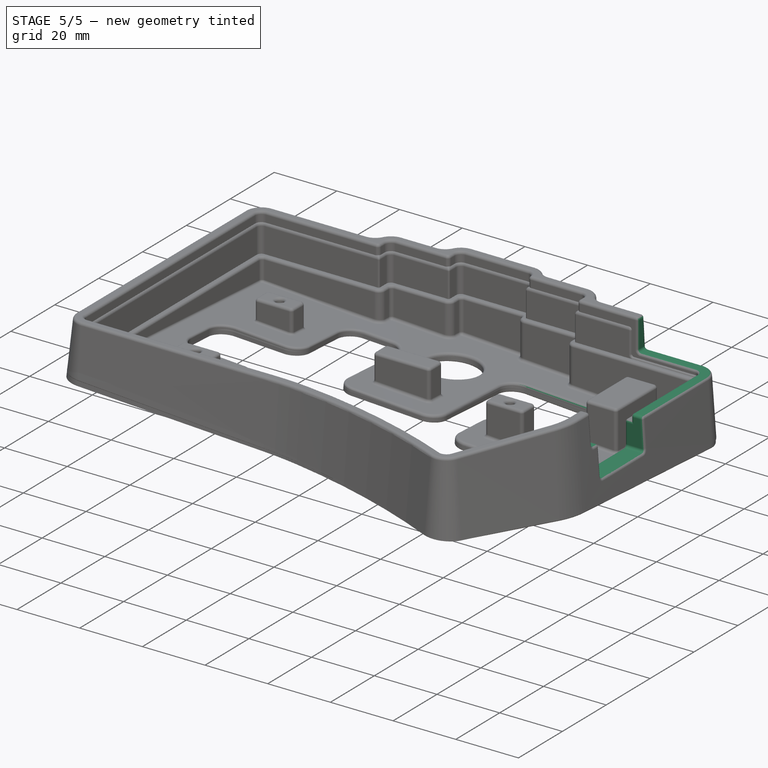
[diagram: stage 5 of 5 — iso view after this stage's code; geometry added in this stage tinted green]
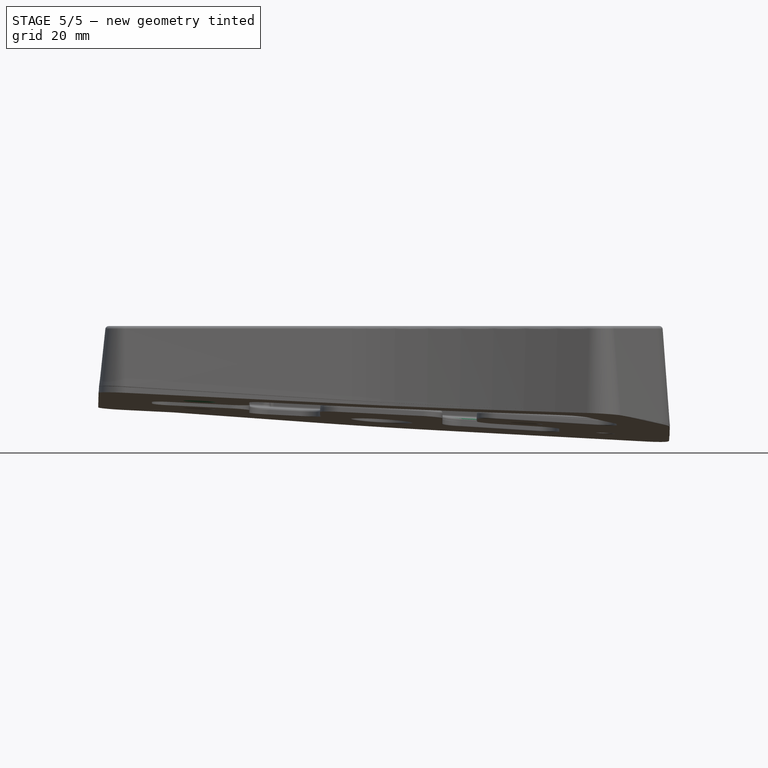
[diagram: stage 5 of 5 — front view after this stage's code; geometry added in this stage tinted green]
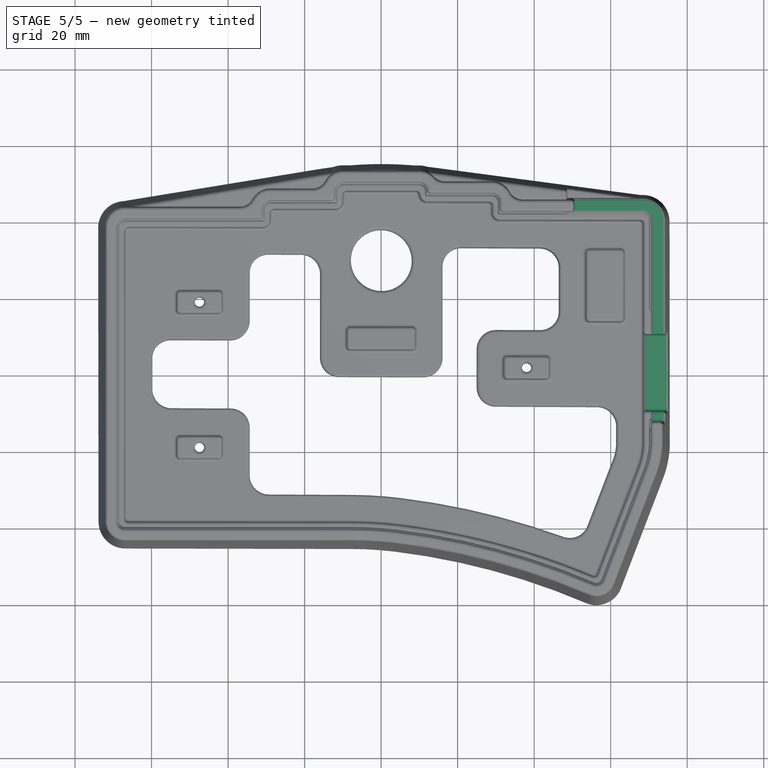
[diagram: stage 5 of 5 — top view after this stage's code; geometry added in this stage tinted green]
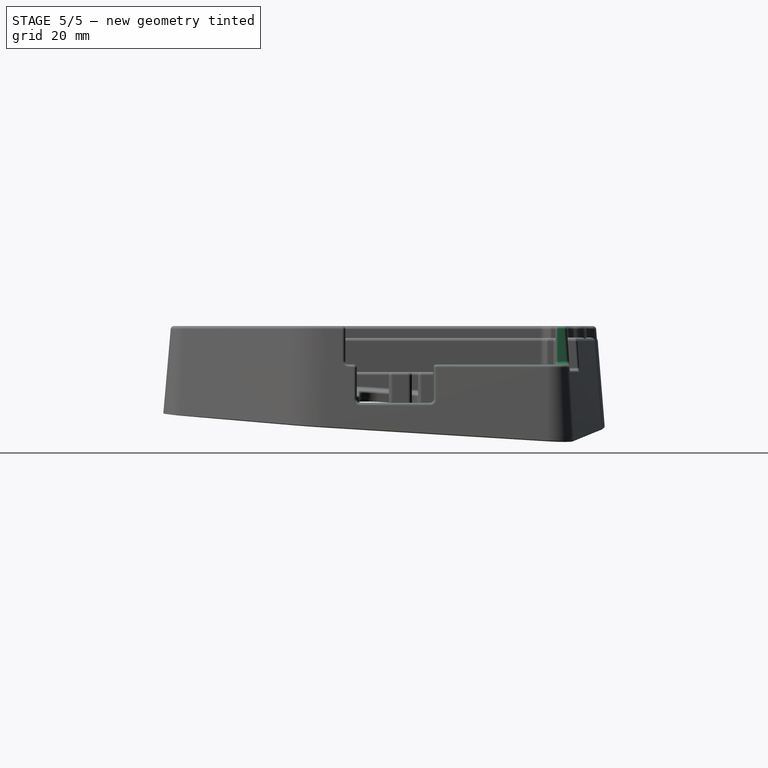
[diagram: stage 5 of 5 — right view after this stage's code; geometry added in this stage tinted green]
FEATURE [Sketcher::SketchObject] Sketch005
  ExternalGeometry = -> [AdditiveLoft]
  FullyConstrained = true
  MapMode = 5
  Placement = pos=(0,0,23) rot=(0,0,1;0rad)
  Support = -> [AdditiveLoft]
  sketch-geometry (4):
    g0: LineSegment StartX=100.384 StartY=55.2588 StartZ=0 EndX=50.3841 EndY=55.2588 EndZ=0
    g1: LineSegment StartX=50.3841 StartY=55.2588 StartZ=0 EndX=50.3841 EndY=-12.4965 EndZ=0
    g2: LineSegment StartX=50.3841 StartY=-12.4965 StartZ=0 EndX=100.384 EndY=-12.4965 EndZ=0
    g3: LineSegment StartX=100.384 StartY=-12.4965 StartZ=0 EndX=100.384 EndY=55.2588 EndZ=0
  constraints (12):
    c: Coincident(g0,g1)
    c: Coincident(g1,g2)
    c: Coincident(g2,g3)
    c: Coincident(g3,g0)
    c: Horizontal(g0)
    c: Horizontal(g2)
    c: Vertical(g1)
    c: Vertical(g3)
    c: DistanceX(g0,g-3) = 25
    c: DistanceY(g-3,g0) = 15
    c: DistanceY(g-3,g2) = 5
    c: Distance(g0) = 50
FEATURE [PartDesign::Pocket] Pocket002
  BaseFeature = -> Hole
  Direction = (0,0,-1)
  Length = 0
  Length2 = 5
  Offset = -2
  Profile = -> Sketch005
  ReferenceAxis = -> Sketch005 [N_Axis]
  Type = 3
  UpToFace = -> Hole [Face84]
FEATURE [Sketcher::SketchObject] Sketch006
  ExternalGeometry = -> [Pocket002]
  FullyConstrained = true
  MapMode = 5
  Placement = pos=(0,0,13) rot=(0,0,1;0rad)
  Support = -> [Pocket002]
  sketch-geometry (4):
    g0: LineSegment StartX=80.5253 StartY=10.5035 StartZ=0 EndX=65.5253 EndY=10.5035 EndZ=0
    g1: LineSegment StartX=65.5253 StartY=10.5035 StartZ=0 EndX=65.5253 EndY=-9.49654 EndZ=0
    g2: LineSegment StartX=65.5253 StartY=-9.49654 StartZ=0 EndX=80.5253 EndY=-9.49654 EndZ=0
    g3: LineSegment StartX=80.5253 StartY=-9.49654 StartZ=0 EndX=80.5253 EndY=10.5035 EndZ=0
  constraints (12):
    c: Coincident(g0,g1)
    c: Coincident(g1,g2)
    c: Coincident(g2,g3)
    c: Coincident(g3,g0)
    c: Horizontal(g0)
    c: Horizontal(g2)
    c: Vertical(g1)
    c: Vertical(g3)
    c: DistanceY(g-3,g2) = 3
    c: DistanceY(g3,g3) = 20
    c: DistanceX(g1,g-3) = 5
    c: DistanceX(g0,g0) = 15
FEATURE [PartDesign::Pocket] Pocket003
  BaseFeature = -> Pocket002
  Direction = (0,0,-1)
  Length = 10
  Length2 = 5
  Profile = -> Sketch006
  ReferenceAxis = -> Sketch006 [N_Axis]
  Type = 0
FEATURE [Sketcher::SketchObject] Sketch007
  FullyConstrained = false
  MapMode = 5
  Placement = pos=(0.0984102,0.0984102,1.99027) rot=(-0.70743,0.706568,-0.017458;0.069824rad)
  Support = -> [Pocket003]
  sketch-geometry (37):
    g0: ArcOfCircle CenterX=-7.68454 CenterY=-139.5 CenterZ=0 NormalX=0 NormalY=0 NormalZ=1 AngleXU=0 Radius=108 StartAngle=1.45294 EndAngle=1.5708
    g1: ArcOfCircle CenterX=49.5253 CenterY=-17.4258 CenterZ=0 NormalX=0 NormalY=0 NormalZ=1 AngleXU=0 Radius=12 StartAngle=5.91667 EndAngle=6.28319
    g2: ArcOfCircle CenterX=-55 CenterY=4 CenterZ=0 NormalX=0 NormalY=0 NormalZ=1 AngleXU=0 Radius=5 StartAngle=1.5708 EndAngle=3.14159
    g3: LineSegment StartX=-60 StartY=4 StartZ=0 EndX=-60 EndY=-4 EndZ=0
    g4: ArcOfCircle CenterX=-55 CenterY=-4 CenterZ=0 NormalX=0 NormalY=0 NormalZ=1 AngleXU=0 Radius=5 StartAngle=3.14159 EndAngle=4.71239
    g5: LineSegment StartX=-39.5 StartY=-9 StartZ=0 EndX=-55 EndY=-9 EndZ=0
    g6: ArcOfCircle CenterX=-39.5 CenterY=-14 CenterZ=0 NormalX=0 NormalY=0 NormalZ=1 AngleXU=0 Radius=5 StartAngle=0 EndAngle=1.5708
    g7: LineSegment StartX=-34.5 StartY=-26.5 StartZ=0 EndX=-34.5 EndY=-14 EndZ=0
    g8: LineSegment StartX=-7.68454 StartY=-31.5 StartZ=0 EndX=-29.5 EndY=-31.5 EndZ=0
    g9: ArcOfCircle CenterX=-29.5 CenterY=-26.5 CenterZ=0 NormalX=0 NormalY=0 NormalZ=1 AngleXU=0 Radius=5 StartAngle=3.14159 EndAngle=4.71239
    g10: ArcOfCircle CenterX=-18.0326 CenterY=-226.893 CenterZ=0 NormalX=0 NormalY=0 NormalZ=1 AngleXU=0 Radius=196.004 StartAngle=1.22913 EndAngle=1.45294
    g11: LineSegment StartX=60.7282 StartY=-21.7262 StartZ=0 EndX=53.9825 EndY=-39.2996 EndZ=0
    g12: ArcOfCircle CenterX=49.3146 CenterY=-37.5077 CenterZ=0 NormalX=0 NormalY=0 NormalZ=1 AngleXU=0 Radius=5 StartAngle=4.37073 EndAngle=5.91667
    g13: LineSegment StartX=61.5253 StartY=-17.4258 StartZ=0 EndX=61.5253 EndY=-13.1 EndZ=0
    g14: ArcOfCircle CenterX=56.5253 CenterY=-13.1 CenterZ=0 NormalX=0 NormalY=0 NormalZ=1 AngleXU=0 Radius=5 StartAngle=0 EndAngle=1.5708
    g15: LineSegment StartX=56.5253 StartY=-8.1 StartZ=0 EndX=30 EndY=-8.1 EndZ=0
    g16: ArcOfCircle CenterX=30 CenterY=-3.1 CenterZ=0 NormalX=0 NormalY=0 NormalZ=1 AngleXU=0 Radius=5 StartAngle=3.14159 EndAngle=4.71239
    g17: ArcOfCircle CenterX=11 CenterY=4.5 CenterZ=0 NormalX=0 NormalY=0 NormalZ=1 AngleXU=0 Radius=5 StartAngle=4.71239 EndAngle=6.28319
    g18: LineSegment StartX=-11 StartY=-0.5 StartZ=0 EndX=11 EndY=-0.5 EndZ=0
    g19: ArcOfCircle CenterX=-11 CenterY=4.5 CenterZ=0 NormalX=0 NormalY=0 NormalZ=1 AngleXU=0 Radius=5 StartAngle=3.14159 EndAngle=4.71239
    g20: LineSegment StartX=25 StartY=6.9 StartZ=0 EndX=25 EndY=-3.1 EndZ=0
    g21: ArcOfCircle CenterX=30 CenterY=6.9 CenterZ=0 NormalX=0 NormalY=0 NormalZ=1 AngleXU=0 Radius=5 StartAngle=1.5708 EndAngle=3.14159
    g22: LineSegment StartX=41.5 StartY=11.9 StartZ=0 EndX=30 EndY=11.9 EndZ=0
    g23: ArcOfCircle CenterX=41.5 CenterY=16.9 CenterZ=0 NormalX=0 NormalY=0 NormalZ=1 AngleXU=0 Radius=5 StartAngle=4.71239 EndAngle=6.28319
    g24: LineSegment StartX=46.5 StartY=28.4 StartZ=0 EndX=46.5 EndY=16.9 EndZ=0
    g25: ArcOfCircle CenterX=41.5 CenterY=28.4 CenterZ=0 NormalX=0 NormalY=0 NormalZ=1 AngleXU=0 Radius=5 StartAngle=0 EndAngle=1.5708
    g26: LineSegment StartX=21 StartY=33.4 StartZ=0 EndX=41.5 EndY=33.4 EndZ=0
    g27: ArcOfCircle CenterX=21 CenterY=28.4 CenterZ=0 NormalX=0 NormalY=0 NormalZ=1 AngleXU=0 Radius=5 StartAngle=1.5708 EndAngle=3.14159
    g28: LineSegment StartX=-16 StartY=4.5 StartZ=0 EndX=-16 EndY=26.5 EndZ=0
    g29: ArcOfCircle CenterX=-21 CenterY=26.5 CenterZ=0 NormalX=0 NormalY=0 NormalZ=1 AngleXU=0 Radius=5 StartAngle=0 EndAngle=1.5708
    g30: LineSegment StartX=-29.5 StartY=31.5 StartZ=0 EndX=-21 EndY=31.5 EndZ=0
    g31: ArcOfCircle CenterX=-29.5 CenterY=26.5 CenterZ=0 NormalX=0 NormalY=0 NormalZ=1 AngleXU=0 Radius=5 StartAngle=1.5708 EndAngle=3.14159
    g32: LineSegment StartX=-39.5 StartY=9 StartZ=0 EndX=-55 EndY=9 EndZ=0
    g33: LineSegment StartX=-34.5 StartY=14 StartZ=0 EndX=-34.5 EndY=26.5 EndZ=0
    g34: ArcOfCircle CenterX=-39.5 CenterY=14 CenterZ=0 NormalX=0 NormalY=0 NormalZ=1 AngleXU=0 Radius=5 StartAngle=4.71239 EndAngle=6.28319
    g35: LineSegment StartX=16 StartY=4.5 StartZ=0 EndX=16 EndY=28.4 EndZ=0
    g36: Circle CenterX=0 CenterY=30 CenterZ=0 NormalX=0 NormalY=0 NormalZ=-1 AngleXU=0 Radius=8
  constraints (36):
    c: Coincident(g3,g4)
    c: Coincident(g2,g3)
    c: Coincident(g4,g5)
    c: Coincident(g2,g32)
    c: Coincident(g5,g6)
    c: Coincident(g32,g34)
    c: Coincident(g7,g9)
    c: Coincident(g6,g7)
    c: Coincident(g33,g34)
    c: Coincident(g31,g33)
    c: Coincident(g8,g9)
    c: Coincident(g30,g31)
    c: Coincident(g29,g30)
    c: Coincident(g19,g28)
    c: Coincident(g28,g29)
    c: Coincident(g18,g19)
    c: Coincident(g0,g8)
    c: Coincident(g0,g10)
    c: Coincident(g17,g18)
    c: Coincident(g17,g35)
    c: Coincident(g27,g35)
    c: Coincident(g26,g27)
    c: Coincident(g16,g20)
    c: Coincident(g20,g21)
    c: Coincident(g15,g16)
    c: Coincident(g21,g22)
    c: Coincident(g22,g23)
    c: Coincident(g25,g26)
    c: Coincident(g23,g24)
    c: Coincident(g24,g25)
    c: Coincident(g10,g12)
    c: Coincident(g11,g12)
    c: Coincident(g14,g15)
    c: Coincident(g1,g11)
    c: Coincident(g1,g13)
    c: Coincident(g13,g14)
FEATURE [PartDesign::Pocket] Pocket004
  BaseFeature = -> Pocket003
  Direction = (-0.0493253,-0.0493253,-0.997564)
  Length = 5
  Length2 = 5
  Profile = -> Sketch007
  ReferenceAxis = -> Sketch007 [N_Axis]
  Type = 1
FEATURE [PartDesign::Chamfer] Chamfer
  Angle = 45
  Base = -> Pocket004 [Edge62,Edge64,Edge61]
  BaseFeature = -> Pocket004
  ChamferType = 0
  FlipDirection = false
  Size = 3
  Size2 = 1
  SupportTransform = false
  UseAllEdges = false
FEATURE [PartDesign::Fillet] Fillet
  Base = -> Chamfer [Face67,Face68,Face69,Face74,Face73,Face72,Face71,Face70,Edge401,Edge324,Edge506,Edge490,Edge450,Edge468,Face75,Edge318,Edge320,Edge202]
  BaseFeature = -> Chamfer
  Radius = 0.85
  SupportTransform = false
  UseAllEdges = false
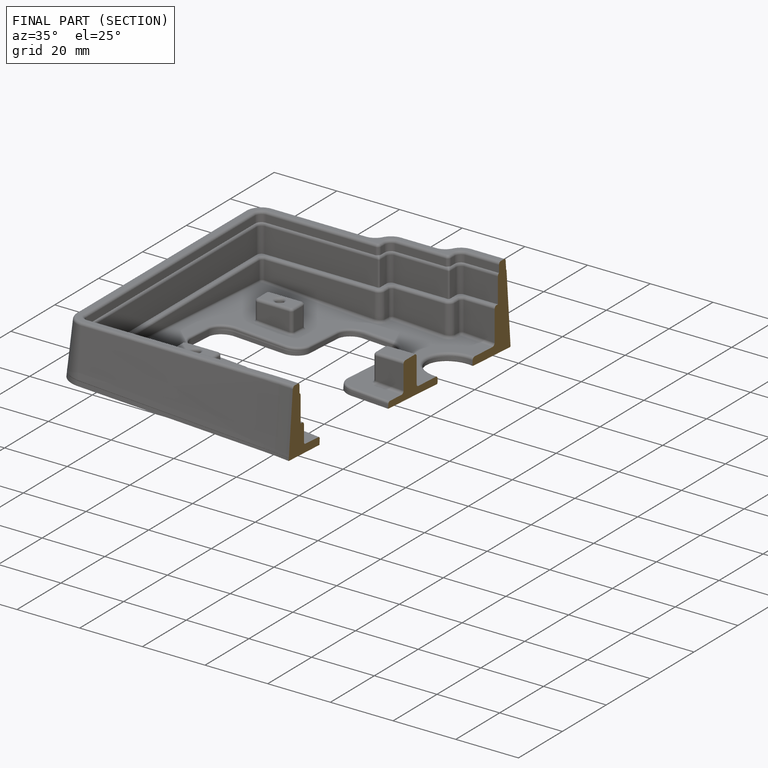
[diagram: finished part — half-section view (interior)]
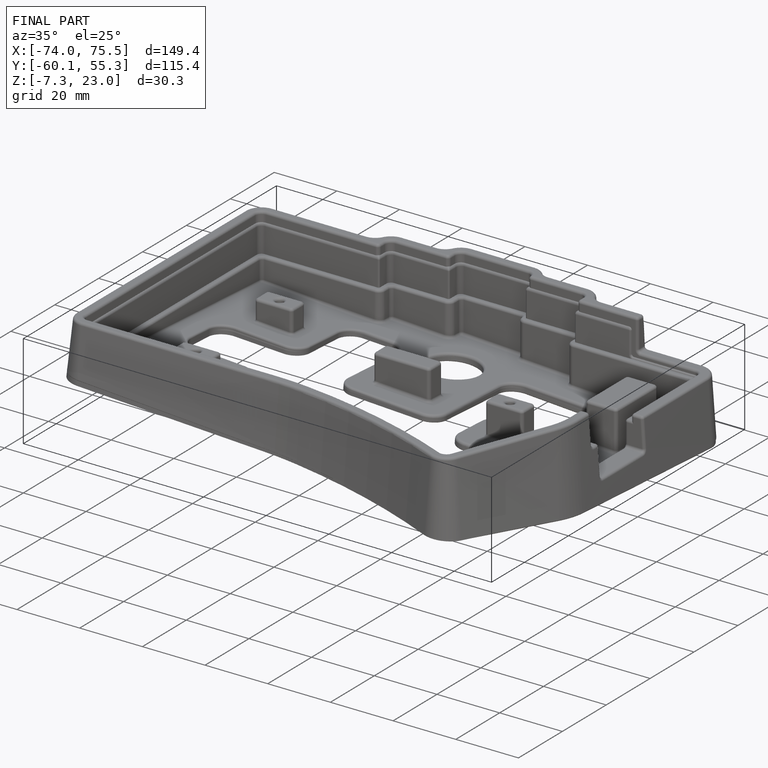
[diagram: finished part — iso view with bounding-box wireframe]
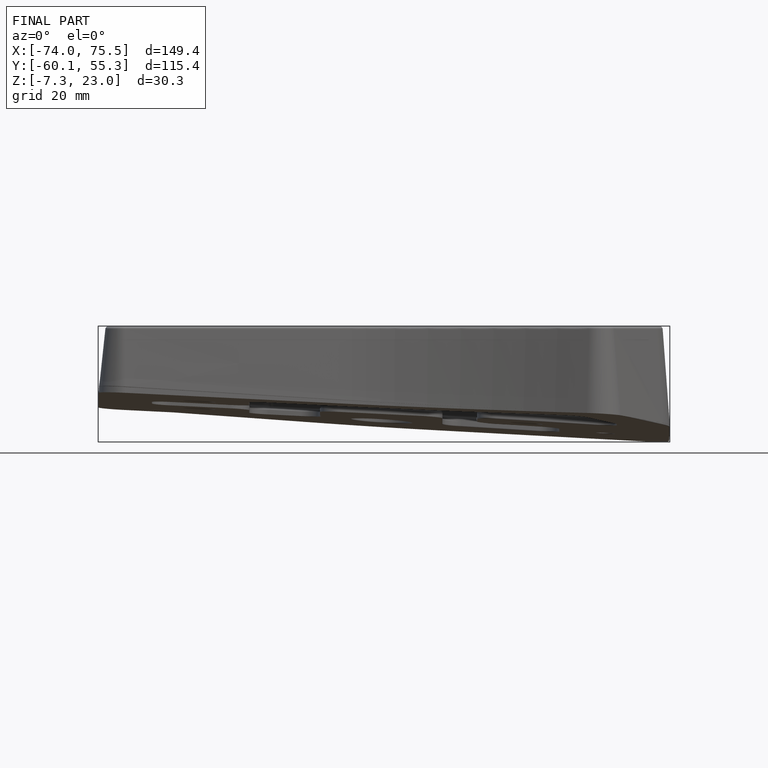
[diagram: finished part — front view with bounding-box wireframe]
